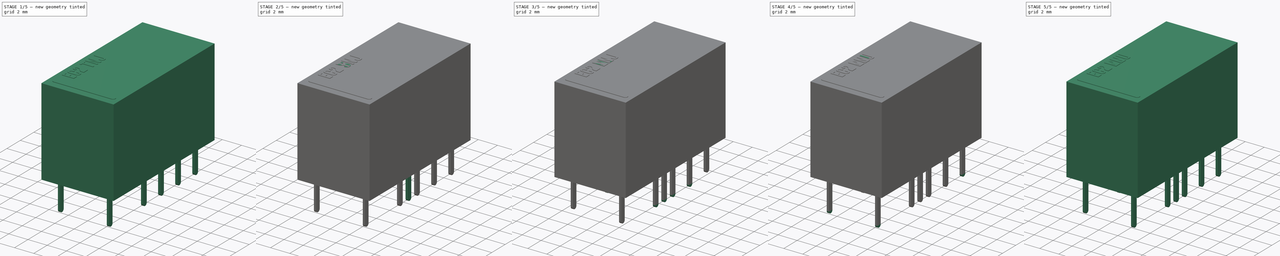
[diagram: build sequence overview — one tinted view per stage of 5, left to right]
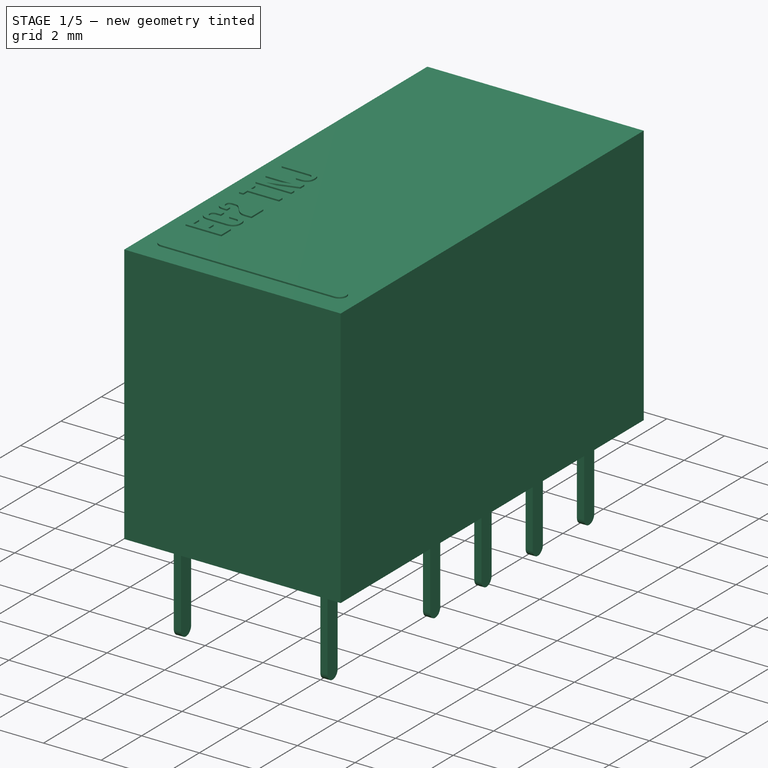
[diagram: stage 1 of 5 — iso view after this stage's code; geometry added in this stage tinted green]
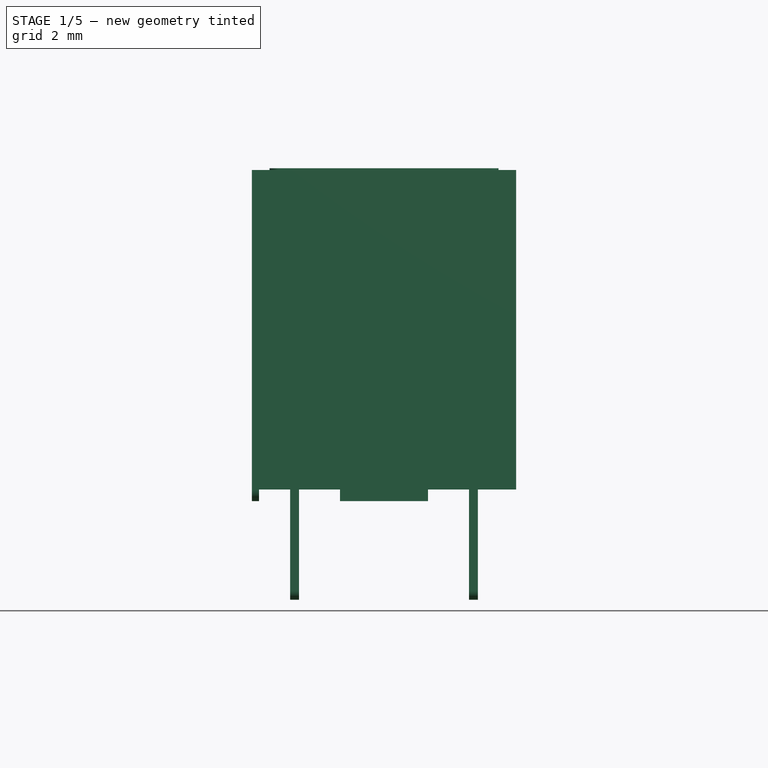
[diagram: stage 1 of 5 — front view after this stage's code; geometry added in this stage tinted green]
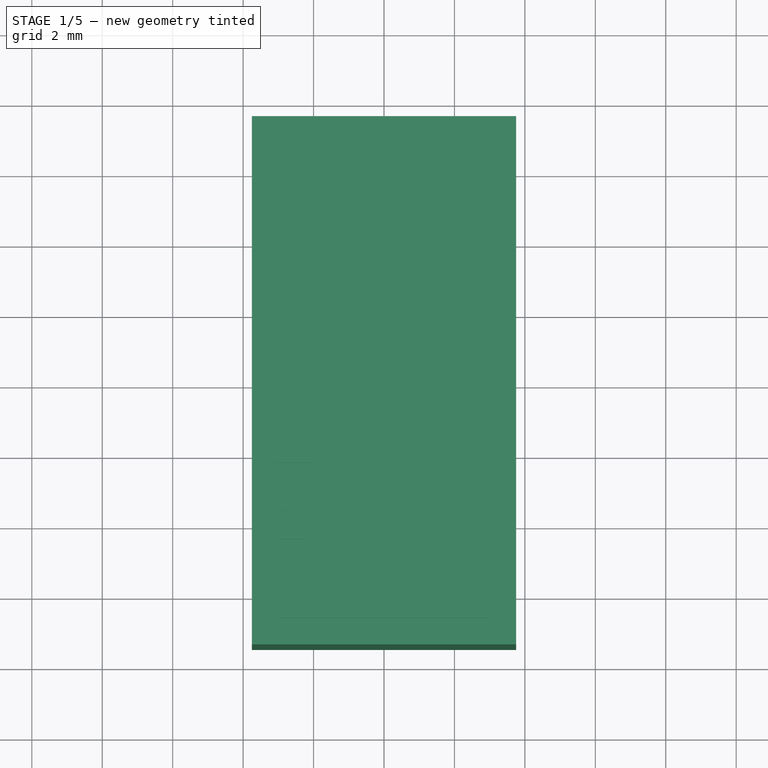
[diagram: stage 1 of 5 — top view after this stage's code; geometry added in this stage tinted green]
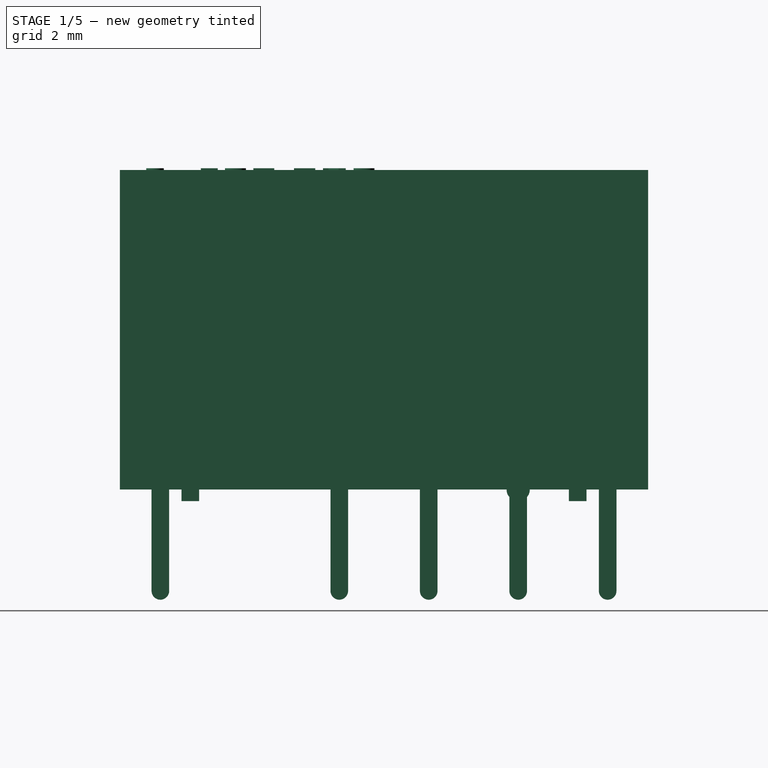
[diagram: stage 1 of 5 — right view after this stage's code; geometry added in this stage tinted green]
FCSTD DOCUMENT  (FreeCAD 0.19R16945 (Git))
Label: Kemet EC2 Series
License: All rights reserved
LicenseURL: http://en.wikipedia.org/wiki/All_rights_reserved
objects: Sketcher::SketchObject×44, PartDesign::Pad×38, PartDesign::Body×22, PartDesign::FeatureBase×16, PartDesign::Pocket×12, Part::FeaturePython×12, PartDesign::Mirrored×6, Part::Part2DObjectPython×6, App::Part×6, Part::MultiFuse×2
note: 208 computed .brp shape members not serialized (recipe doc carries the construction recipe); baked Part::Feature solids carry a one-line shape summary decoded from their .brp

FEATURE [PartDesign::Body] Body019
  BaseFeature = -> Pad036
  Group = -> [Clone015]
  Origin = -> Origin025
  Placement = pos=(0,-6.35,0) rot=(0,0,1;0rad)
  Tip = -> Clone015
FEATURE [PartDesign::Body] Body020
  Group = -> [Clone013]
  Origin = -> Origin021
  Placement = pos=(-5.08,-6.35,0) rot=(0,0,1;0rad)
  Tip = -> Clone013
FEATURE [Sketcher::SketchObject] Sketch042
  MapMode = 5
  Support = -> [XY_Plane025]
  sketch-geometry (4):
    g0: LineSegment StartX=3.75 StartY=-7.5 StartZ=0 EndX=-3.75 EndY=-7.5 EndZ=0
    g1: LineSegment StartX=-3.75 StartY=-7.5 StartZ=0 EndX=-3.75 EndY=7.5 EndZ=0
    g2: LineSegment StartX=-3.75 StartY=7.5 StartZ=0 EndX=3.75 EndY=7.5 EndZ=0
    g3: LineSegment StartX=3.75 StartY=7.5 StartZ=0 EndX=3.75 EndY=-7.5 EndZ=0
  constraints (10):
    c: Coincident(g0,g1)
    c: Coincident(g1,g2)
    c: Coincident(g2,g3)
    c: Coincident(g3,g0)
    c: Horizontal(g0)
    c: Vertical(g1)
    c: Symmetric(g1,g2,g-2)
    c: Symmetric(g2,g0,g-1)
    c: DistanceX(g2,g2) = 7.5
    c: DistanceY(g3,g3) = 15
FEATURE [PartDesign::Pad] Pad031  label="MainPad004"
  Length = 9.4
  Length2 = 100
  Profile = -> Sketch042
  Type = 0
FEATURE [Sketcher::SketchObject] Sketch043
  MapMode = 5
  Placement = pos=(0,0,9.4) rot=(0,0,1;0rad)
  sketch-geometry (4):
    g0: ArcOfCircle CenterX=-3 CenterY=-6.5 CenterZ=0 NormalX=0 NormalY=0 NormalZ=1 AngleXU=0 Radius=0.25 StartAngle=1.5708 EndAngle=4.71239
    g1: ArcOfCircle CenterX=3 CenterY=-6.5 CenterZ=0 NormalX=0 NormalY=0 NormalZ=1 AngleXU=0 Radius=0.25 StartAngle=4.71239 EndAngle=7.85398
    g2: LineSegment StartX=-3 StartY=-6.75 StartZ=0 EndX=3 EndY=-6.75 EndZ=0
    g3: LineSegment StartX=-3 StartY=-6.25 StartZ=0 EndX=3 EndY=-6.25 EndZ=0
  constraints (7):
    c: Tangent(g0,g3) = 1.5708
    c: Tangent(g0,g2) = -1.5708
    c: Tangent(g2,g1) = -1.5708
    c: Tangent(g3,g1) = 1.5708
    c: Horizontal(g2)
    c: Symmetric(g1,g0,g-2)
    c: DistanceY(g1,g1) = 0.5
FEATURE [Sketcher::SketchObject] Sketch044
  ExternalGeometry = -> [Pad031]
  MapMode = 5
  Placement = pos=(-3.75,0,0) rot=(0.57735,-0.57735,-0.57735;2.0944rad)
  Support = -> [Pad031]
  sketch-geometry (4):
    g0: LineSegment StartX=-7.5 StartY=0 StartZ=0 EndX=7.5 EndY=0 EndZ=0
    g1: LineSegment StartX=7.5 StartY=0 StartZ=0 EndX=7.5 EndY=0.33 EndZ=0
    g2: LineSegment StartX=7.5 StartY=0.33 StartZ=0 EndX=-7.5 EndY=0.33 EndZ=0
    g3: LineSegment StartX=-7.5 StartY=0.33 StartZ=0 EndX=-7.5 EndY=0 EndZ=0
  constraints (11):
    c: Coincident(g0,g1)
    c: Coincident(g1,g2)
    c: Coincident(g2,g3)
    c: Coincident(g3,g0)
    c: Horizontal(g0)
    c: Horizontal(g2)
    c: Vertical(g1)
    c: Vertical(g3)
    c: Coincident(g0,g-3)
    c: PointOnObject(g1,g-4)
    c: DistanceY(g1,g1) = 0.33
FEATURE [PartDesign::Pocket] Pocket012  label="BottomPocket004"
  BaseFeature = -> Pad031
  Length = 5
  Length2 = 100
  Profile = -> Sketch044
  Type = 1
FEATURE [Sketcher::SketchObject] Sketch038
  MapMode = 5
  Placement = pos=(0,0,0.33) rot=(1,0,0;3.14159rad)
  Support = -> [Pocket012]
  sketch-geometry (4):
    g0: LineSegment StartX=-1.25 StartY=5.25 StartZ=0 EndX=1.25 EndY=5.25 EndZ=0
    g1: LineSegment StartX=1.25 StartY=5.25 StartZ=0 EndX=1.25 EndY=5.75 EndZ=0
    g2: LineSegment StartX=1.25 StartY=5.75 StartZ=0 EndX=-1.25 EndY=5.75 EndZ=0
    g3: LineSegment StartX=-1.25 StartY=5.75 StartZ=0 EndX=-1.25 EndY=5.25 EndZ=0
  constraints (11):
    c: Coincident(g0,g1)
    c: Coincident(g1,g2)
    c: Coincident(g2,g3)
    c: Coincident(g3,g0)
    c: Horizontal(g0)
    c: Vertical(g1)
    c: Vertical(g3)
    c: Symmetric(g2,g1,g-2)
    c: DistanceX(g2,g2) = 2.5
    c: DistanceY(g1,g1) = 0.5
    c: DistanceY(g-1,g0) = 5.25
FEATURE [PartDesign::Pad] Pad033
  BaseFeature = -> Pocket012
  Length = 0.33
  Length2 = 100
  Profile = -> Sketch038
  Type = 0
FEATURE [PartDesign::Mirrored] Mirrored004
  BaseFeature = -> Pad033
  MirrorPlane = -> XZ_Plane023
  Originals = -> [Pad033]
FEATURE [PartDesign::Body] Body018  label="EC2-SNJ_Body"
  Group = -> [Sketch042,Pad031,Sketch044,Pocket012,Sketch038,Pad033,Mirrored004,Sketch040,Pocket011,Sketch041,Pad035,ShapeString004,Sketch043,Pad034,Pad032]
  Origin = -> Origin023
  Tip = -> Pad032
FEATURE [App::Part] Part004  label="EC2-SNJ"
  Group = -> [Body018,Sketch039,Pad036,Body019,Body020,Body017,Body016,Array011,Array012]
  Origin = -> Origin024
FEATURE [Sketcher::SketchObject] Sketch046
  AttachmentOffset = pos=(0,0,2.54) rot=(0,0,1;0rad)
  MapMode = 5
  Placement = pos=(2.54,-1e-15,1e-15) rot=(0.57735,0.57735,0.57735;2.0944rad)
  sketch-geometry (6):
    g0: ArcOfCircle CenterX=0 CenterY=-2.55 CenterZ=0 NormalX=0 NormalY=0 NormalZ=1 AngleXU=0 Radius=0.25 StartAngle=3.14159 EndAngle=6.28319
    g1: LineSegment StartX=-0.25 StartY=-2.55 StartZ=0 EndX=-0.25 EndY=0.33 EndZ=0
    g2: LineSegment StartX=-0.25 StartY=0.33 StartZ=0 EndX=0.25 EndY=0.33 EndZ=0
    g3: LineSegment StartX=0.25 StartY=0.33 StartZ=0 EndX=0.25 EndY=-2.55 EndZ=0
    g4: GeomPoint X=-0.25 Y=0 Z=0
    g5: GeomPoint X=0 Y=-2.8 Z=0
  constraints (16):
    c: Tangent(g0,g1) = 1.5708
    c: Coincident(g1,g2)
    c: Coincident(g2,g3)
    c: Coincident(g3,g0)
    c: Vertical(g3)
    c: Equal(g3,g1)
    c: Vertical(g1)
    c: Horizontal(g2)
    c: PointOnObject(g4,g1)
    c: PointOnObject(g4,g-1)
    c: DistanceY(g4,g1) = 0.33
    c: DistanceX(g0,g0) = 0.5
    c: PointOnObject(g5,g0)
    c: Vertical(g5,g0)
    c: DistanceY(g5,g-1) = 2.8
    c: PointOnObject(g0,g-2)
FEATURE [Sketcher::SketchObject] Sketch048
  MapMode = 5
  Support = -> [XY_Plane027]
  sketch-geometry (4):
    g0: LineSegment StartX=3.75 StartY=-7.5 StartZ=0 EndX=-3.75 EndY=-7.5 EndZ=0
    g1: LineSegment StartX=-3.75 StartY=-7.5 StartZ=0 EndX=-3.75 EndY=7.5 EndZ=0
    g2: LineSegment StartX=-3.75 StartY=7.5 StartZ=0 EndX=3.75 EndY=7.5 EndZ=0
    g3: LineSegment StartX=3.75 StartY=7.5 StartZ=0 EndX=3.75 EndY=-7.5 EndZ=0
  constraints (10):
    c: Coincident(g0,g1)
    c: Coincident(g1,g2)
    c: Coincident(g2,g3)
    c: Coincident(g3,g0)
    c: Horizontal(g0)
    c: Vertical(g1)
    c: Symmetric(g1,g2,g-2)
    c: Symmetric(g2,g0,g-1)
    c: DistanceX(g2,g2) = 7.5
    c: DistanceY(g3,g3) = 15
FEATURE [PartDesign::Pad] Pad037
  Length = 0.25
  Length2 = 100
  Midplane = true
  Placement = pos=(2.54,-1e-15,1e-15) rot=(0.57735,0.57735,0.57735;2.0944rad)
  Profile = -> Sketch046
  Reversed = true
  Type = 0
FEATURE [PartDesign::Pad] Pad039  label="MainPad005"
  Length = 9.4
  Length2 = 100
  Profile = -> Sketch048
  Type = 0
FEATURE [Sketcher::SketchObject] Sketch051
  ExternalGeometry = -> [Pad039]
  MapMode = 5
  Placement = pos=(-3.75,0,0) rot=(0.57735,-0.57735,-0.57735;2.0944rad)
  Support = -> [Pad039]
  sketch-geometry (4):
    g0: LineSegment StartX=-7.5 StartY=0 StartZ=0 EndX=7.5 EndY=0 EndZ=0
    g1: LineSegment StartX=7.5 StartY=0 StartZ=0 EndX=7.5 EndY=0.33 EndZ=0
    g2: LineSegment StartX=7.5 StartY=0.33 StartZ=0 EndX=-7.5 EndY=0.33 EndZ=0
    g3: LineSegment StartX=-7.5 StartY=0.33 StartZ=0 EndX=-7.5 EndY=0 EndZ=0
  constraints (11):
    c: Coincident(g0,g1)
    c: Coincident(g1,g2)
    c: Coincident(g2,g3)
    c: Coincident(g3,g0)
    c: Horizontal(g0)
    c: Horizontal(g2)
    c: Vertical(g1)
    c: Vertical(g3)
    c: Coincident(g0,g-3)
    c: PointOnObject(g1,g-4)
    c: DistanceY(g1,g1) = 0.33
FEATURE [PartDesign::Pocket] Pocket013  label="BottomPocket005"
  BaseFeature = -> Pad039
  Length = 5
  Length2 = 100
  Profile = -> Sketch051
  Type = 1
FEATURE [Sketcher::SketchObject] Sketch045
  MapMode = 5
  Placement = pos=(0,0,0.33) rot=(1,0,0;3.14159rad)
  Support = -> [Pocket013]
  sketch-geometry (4):
    g0: LineSegment StartX=-1.25 StartY=5.25 StartZ=0 EndX=1.25 EndY=5.25 EndZ=0
    g1: LineSegment StartX=1.25 StartY=5.25 StartZ=0 EndX=1.25 EndY=5.75 EndZ=0
    g2: LineSegment StartX=1.25 StartY=5.75 StartZ=0 EndX=-1.25 EndY=5.75 EndZ=0
    g3: LineSegment StartX=-1.25 StartY=5.75 StartZ=0 EndX=-1.25 EndY=5.25 EndZ=0
  constraints (11):
    c: Coincident(g0,g1)
    c: Coincident(g1,g2)
    c: Coincident(g2,g3)
    c: Coincident(g3,g0)
    c: Horizontal(g0)
    c: Vertical(g1)
    c: Vertical(g3)
    c: Symmetric(g2,g1,g-2)
    c: DistanceX(g2,g2) = 2.5
    c: DistanceY(g1,g1) = 0.5
    c: DistanceY(g-1,g0) = 5.25
FEATURE [Sketcher::SketchObject] Sketch050
  MapMode = 5
  Placement = pos=(-3.75,0,0) rot=(0.57735,-0.57735,-0.57735;2.0944rad)
  Support = -> [Pocket013]
  sketch-geometry (3):
    g0: LineSegment StartX=-4.14 StartY=0.33 StartZ=0 EndX=-3.48 EndY=0.33 EndZ=0
    g1: ArcOfCircle CenterX=-3.81 CenterY=0.33 CenterZ=0 NormalX=0 NormalY=0 NormalZ=1 AngleXU=0 Radius=0.33 StartAngle=3.14159 EndAngle=6.28319
    g2: GeomPoint X=-3.81 Y=0 Z=0
  constraints (9):
    c: Horizontal(g0)
    c: DistanceX(g0,g0) = 0.66
    c: Coincident(g1,g0)
    c: Coincident(g1,g0)
    c: PointOnObject(g2,g1)
    c: PointOnObject(g2,g-1)
    c: DistanceY(g2,g0) = 0.33
    c: Tangent(g1,g-1)
    c: DistanceX(g2,g-1) = 3.81
FEATURE [PartDesign::Pad] Pad041
  BaseFeature = -> Pocket013
  Length = 0.33
  Length2 = 100
  Profile = -> Sketch045
  Type = 0
FEATURE [PartDesign::Mirrored] Mirrored005
  BaseFeature = -> Pad041
  MirrorPlane = -> XZ_Plane026
  Originals = -> [Pad041]
FEATURE [Sketcher::SketchObject] Sketch049
  ExternalGeometry = -> [Mirrored005]
  MapMode = 5
  Placement = pos=(0,0,0.33) rot=(1,0,0;3.14159rad)
  Support = -> [Mirrored005]
  sketch-geometry (12):
    g0: LineSegment StartX=1.25 StartY=5.75 StartZ=0 EndX=-1.25 EndY=5.75 EndZ=0
    g1: LineSegment StartX=-1.25 StartY=5.75 StartZ=0 EndX=-1.25 EndY=5.25 EndZ=0
    g2: LineSegment StartX=-1.25 StartY=5.25 StartZ=0 EndX=1.25 EndY=5.25 EndZ=0
    g3: LineSegment StartX=1.25 StartY=5.25 StartZ=0 EndX=1.25 EndY=5.75 EndZ=0
    g4: LineSegment StartX=-1.25 StartY=-5.25 StartZ=0 EndX=1.25 EndY=-5.25 EndZ=0
    g5: LineSegment StartX=1.25 StartY=-5.25 StartZ=0 EndX=1.25 EndY=-5.75 EndZ=0
    g6: LineSegment StartX=1.25 StartY=-5.75 StartZ=0 EndX=-1.25 EndY=-5.75 EndZ=0
    g7: LineSegment StartX=-1.25 StartY=-5.75 StartZ=0 EndX=-1.25 EndY=-5.25 EndZ=0
    g8: LineSegment StartX=-3.55 StartY=7.3 StartZ=0 EndX=3.55 EndY=7.3 EndZ=0
    g9: LineSegment StartX=3.55 StartY=7.3 StartZ=0 EndX=3.55 EndY=-7.3 EndZ=0
    g10: LineSegment StartX=3.55 StartY=-7.3 StartZ=0 EndX=-3.55 EndY=-7.3 EndZ=0
    g11: LineSegment StartX=-3.55 StartY=-7.3 StartZ=0 EndX=-3.55 EndY=7.3 EndZ=0
  constraints (30):
    c: Coincident(g0,g1)
    c: Coincident(g1,g2)
    c: Coincident(g2,g3)
    c: Coincident(g3,g0)
    c: Horizontal(g0)
    c: Horizontal(g2)
    c: Vertical(g1)
    c: Vertical(g3)
    c: Coincident(g0,g-5)
    c: Coincident(g1,g-6)
    c: Coincident(g4,g5)
    c: Coincident(g5,g6)
    c: Coincident(g6,g7)
    c: Coincident(g7,g4)
    c: Horizontal(g4)
    c: Horizontal(g6)
    c: Vertical(g5)
    c: Vertical(g7)
    c: Coincident(g4,g-7)
    c: Coincident(g5,g-8)
    c: Coincident(g8,g9)
    c: Coincident(g9,g10)
    c: Coincident(g10,g11)
    c: Coincident(g11,g8)
    c: Horizontal(g8)
    c: Vertical(g9)
    c: DistanceX(g8,g-4) = 0.2
    c: DistanceY(g8,g-4) = 0.2
    c: Symmetric(g9,g10,g-2)
    c: Symmetric(g8,g10,g-1)
FEATURE [PartDesign::Pocket] Pocket014
  BaseFeature = -> Mirrored005
  Length = 0.1
  Length2 = 100
  Profile = -> Sketch049
  Type = 0
FEATURE [Part::FeaturePython] Array013  # Draft array (typed FeaturePython)
  Angle = 360
  ArrayType = 0
  Axis = (0,0,1)
  Base = -> Pad037
  Center = (0,0,0)
  Fuse = false
  IntervalAxis = (0,0,0)
  IntervalX = (-5.08,0,0)
  IntervalY = (0,2.54,0)
  IntervalZ = (0,0,1)
  NumberPolar = 1
  NumberX = 2
  NumberY = 4
  NumberZ = 1
  Placement = pos=(0,-1.27,0) rot=(0,0,1;0rad)
FEATURE [Part::FeaturePython] Array014  # Draft array (typed FeaturePython)
  Angle = 360
  ArrayType = 0
  Axis = (0,0,1)
  Base = -> Pad037
  Center = (0,0,0)
  Fuse = false
  IntervalAxis = (0,0,0)
  IntervalX = (-5.08,0,0)
  IntervalY = (0,-6.35,0)
  IntervalZ = (0,0,1)
  NumberPolar = 1
  NumberX = 2
  NumberY = 1
  NumberZ = 1
  Placement = pos=(0,-6.35,0) rot=(0,0,1;0rad)
FEATURE [Sketcher::SketchObject] Sketch052
  MapMode = 5
  Placement = pos=(0,0,0.43) rot=(1,0,0;3.14159rad)
  Support = -> [Pocket014]
  sketch-geometry (8):
    g0: LineSegment StartX=-1.62309 StartY=4.64048 StartZ=0 EndX=1.62309 EndY=4.64048 EndZ=0
    g1: LineSegment StartX=2.49814 StartY=3.76544 StartZ=0 EndX=2.49814 EndY=-3.76544 EndZ=0
    g2: LineSegment StartX=1.62309 StartY=-4.64048 StartZ=0 EndX=-1.62309 EndY=-4.64048 EndZ=0
    g3: LineSegment StartX=-2.49814 StartY=-3.76544 StartZ=0 EndX=-2.49814 EndY=3.76544 EndZ=0
    g4: ArcOfCircle CenterX=-1.62309 CenterY=3.76544 CenterZ=0 NormalX=0 NormalY=0 NormalZ=1 AngleXU=0 Radius=0.875044 StartAngle=1.5708 EndAngle=3.14159
    g5: ArcOfCircle CenterX=1.62309 CenterY=3.76544 CenterZ=0 NormalX=0 NormalY=0 NormalZ=1 AngleXU=0 Radius=0.875044 StartAngle=0 EndAngle=1.5708
    g6: ArcOfCircle CenterX=1.62309 CenterY=-3.76544 CenterZ=0 NormalX=0 NormalY=0 NormalZ=1 AngleXU=0 Radius=0.875044 StartAngle=4.71239 EndAngle=6.28319
    g7: ArcOfCircle CenterX=-1.62309 CenterY=-3.76544 CenterZ=0 NormalX=0 NormalY=0 NormalZ=1 AngleXU=0 Radius=0.875044 StartAngle=3.14159 EndAngle=4.71239
  constraints (15):
    c: Horizontal(g0)
    c: Horizontal(g2)
    c: Vertical(g1)
    c: Vertical(g3)
    c: Tangent(g0,g4) = 1.5708
    c: Tangent(g3,g4) = 1.5708
    c: Tangent(g0,g5) = 1.5708
    c: Tangent(g1,g5) = 1.5708
    c: Tangent(g1,g6) = 1.5708
    c: Tangent(g2,g6) = 1.5708
    c: Tangent(g2,g7) = 1.5708
    c: Tangent(g3,g7) = 1.5708
    c: Equal(g5,g6)
    c: Symmetric(g3,g1,g-2)
    c: Symmetric(g0,g2,g-1)
FEATURE [PartDesign::Pad] Pad043
  BaseFeature = -> Pocket014
  Length = 0.05
  Length2 = 100
  Profile = -> Sketch052
  Type = 0
FEATURE [PartDesign::Pad] Pad042  label="StandoffPad003"
  BaseFeature = -> Pad043
  Length = 0.2
  Length2 = 100
  Profile = -> Sketch050
  Refine = true
  Reversed = true
  Type = 0
FEATURE [Sketcher::SketchObject] Sketch047
  ExternalGeometry = -> [Pad042]
  MapMode = 5
  Placement = pos=(0,0,9.4) rot=(0,0,1;0rad)
  Support = -> [Pad042]
  sketch-geometry (4):
    g0: ArcOfCircle CenterX=-3 CenterY=-6.5 CenterZ=0 NormalX=0 NormalY=0 NormalZ=1 AngleXU=0 Radius=0.25 StartAngle=1.5708 EndAngle=4.71239
    g1: ArcOfCircle CenterX=3 CenterY=-6.5 CenterZ=0 NormalX=0 NormalY=0 NormalZ=1 AngleXU=0 Radius=0.25 StartAngle=4.71239 EndAngle=7.85398
    g2: LineSegment StartX=-3 StartY=-6.75 StartZ=0 EndX=3 EndY=-6.75 EndZ=0
    g3: LineSegment StartX=-3 StartY=-6.25 StartZ=0 EndX=3 EndY=-6.25 EndZ=0
  constraints (9):
    c: Tangent(g0,g3) = 1.5708
    c: Tangent(g0,g2) = -1.5708
    c: Tangent(g2,g1) = -1.5708
    c: Tangent(g3,g1) = 1.5708
    c: Horizontal(g2)
    c: Symmetric(g1,g0,g-2)
    c: DistanceY(g1,g1) = 0.5
    c: DistanceX(g-3,g0) = 0.75
    c: DistanceY(g-4,g0) = 1
FEATURE [PartDesign::Pad] Pad040  label="CoilMarkingPad005"
  BaseFeature = -> Pad042
  Length = 0.05
  Length2 = 100
  Profile = -> Sketch047
  Type = 0
FEATURE [Part::MultiFuse] Fusion003  label="EC2-TNJ_Pins"
  Shapes = -> [Array014,Array013]
FEATURE [Part::Part2DObjectPython] ShapeString005  # Draft 2D object (typed FeaturePython)
  AttachmentOffset = pos=(-1,-1,0) rot=(0,0,1;-1.5708rad)
  FontFile = <userpath>/Desktop/GitHub/freecad-projects/00-fonts/coolvetica condensed rg.ttf
  MapMode = 6
  Placement = pos=(-2,-5.25,9.4) rot=(0,0,-1;4.71239rad)
  Size = 0.75
  String = EC2 TNJ
  Support = -> [Pad040]
  Tracking = 0.125
FEATURE [PartDesign::Pad] Pad038  label="ShapeStringPad005"
  BaseFeature = -> Pad040
  Length = 0.05
  Length2 = 100
  Profile = -> ShapeString005
  Type = 0
FEATURE [PartDesign::Body] Body021  label="EC2-TNJ_Body"
  Group = -> [Sketch048,Pad039,Sketch051,Pocket013,Sketch050,Sketch045,Pad041,Mirrored005,Sketch049,Pocket014,Sketch052,Pad043,Pad042,ShapeString005,Sketch047,Pad040,Pad038]
  Origin = -> Origin027
  Tip = -> Pad038
FEATURE [App::Part] Part005  label="EC2-TNJ"
  Group = -> [Body021,Sketch046,Pad037,Array014,Array013,Fusion003]
  Origin = -> Origin026
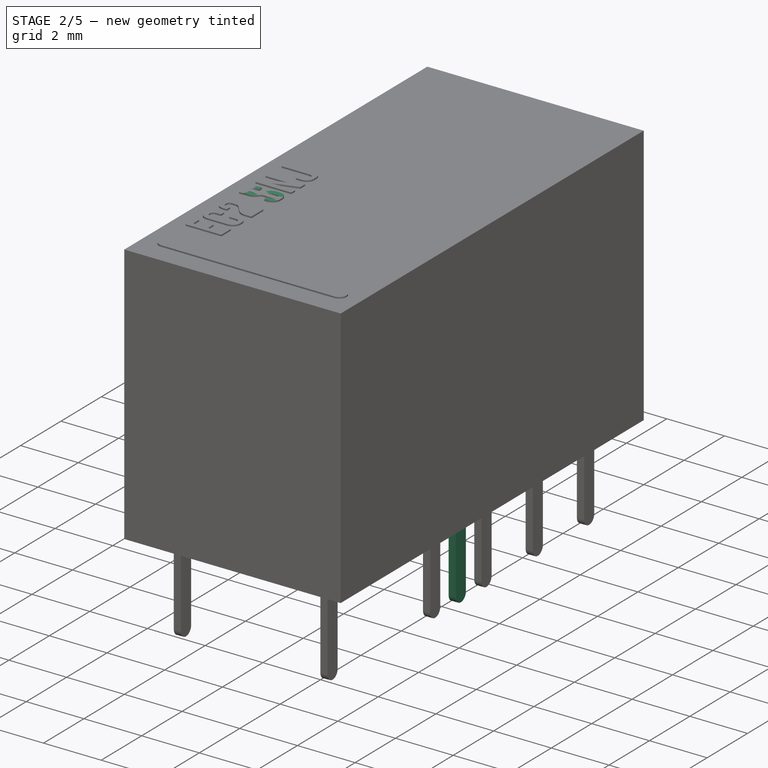
[diagram: stage 2 of 5 — iso view after this stage's code; geometry added in this stage tinted green]
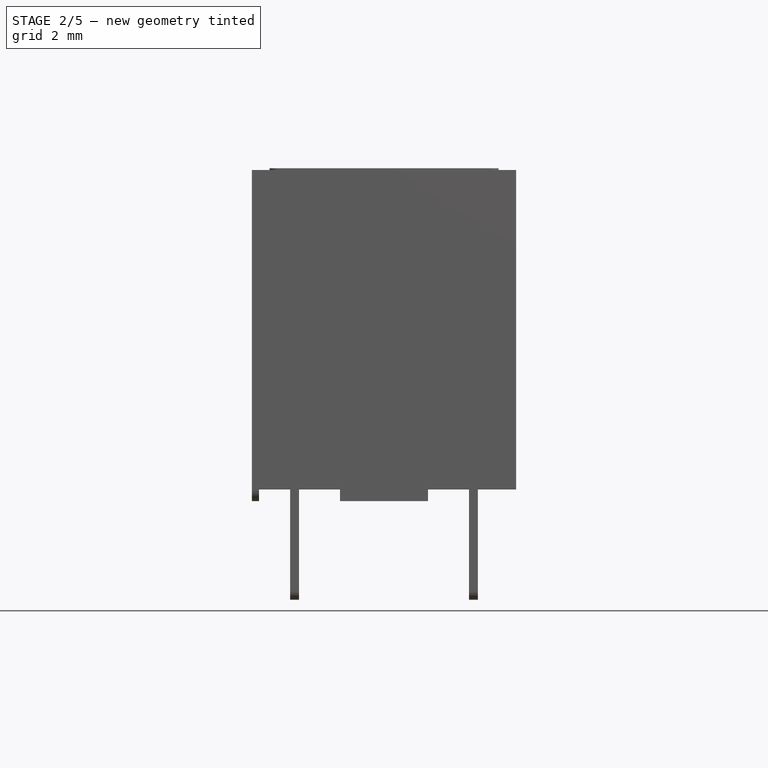
[diagram: stage 2 of 5 — front view after this stage's code; geometry added in this stage tinted green]
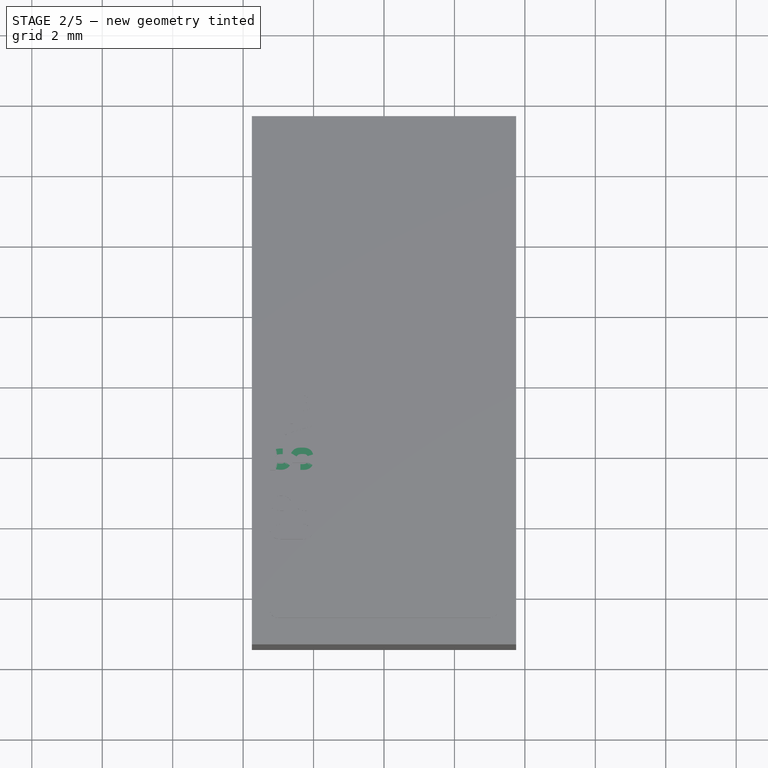
[diagram: stage 2 of 5 — top view after this stage's code; geometry added in this stage tinted green]
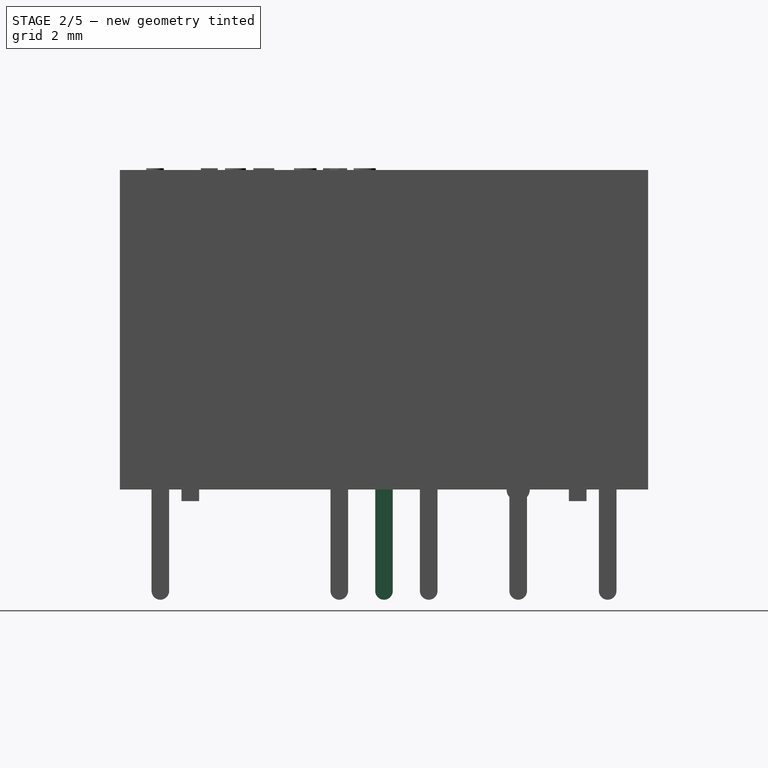
[diagram: stage 2 of 5 — right view after this stage's code; geometry added in this stage tinted green]
FEATURE [App::Part] Part001  label="EC2-SNU"
  Group = -> [Body001,Sketch017,Pad012,Body007,Body008,Body009,Body010,Array007,Array008]
  Origin = -> Origin003
FEATURE [Sketcher::SketchObject] Sketch031
  MapMode = 5
  Placement = pos=(0,0,9.4) rot=(0,0,1;0rad)
  sketch-geometry (4):
    g0: ArcOfCircle CenterX=-3 CenterY=-6.5 CenterZ=0 NormalX=0 NormalY=0 NormalZ=1 AngleXU=0 Radius=0.25 StartAngle=1.5708 EndAngle=4.71239
    g1: ArcOfCircle CenterX=3 CenterY=-6.5 CenterZ=0 NormalX=0 NormalY=0 NormalZ=1 AngleXU=0 Radius=0.25 StartAngle=4.71239 EndAngle=7.85398
    g2: LineSegment StartX=-3 StartY=-6.75 StartZ=0 EndX=3 EndY=-6.75 EndZ=0
    g3: LineSegment StartX=-3 StartY=-6.25 StartZ=0 EndX=3 EndY=-6.25 EndZ=0
  constraints (7):
    c: Tangent(g0,g3) = 1.5708
    c: Tangent(g0,g2) = -1.5708
    c: Tangent(g2,g1) = -1.5708
    c: Tangent(g3,g1) = 1.5708
    c: Horizontal(g2)
    c: Symmetric(g1,g0,g-2)
    c: DistanceY(g1,g1) = 0.5
FEATURE [Sketcher::SketchObject] Sketch033
  AttachmentOffset = pos=(0,0,2.54) rot=(0,0,1;0rad)
  MapMode = 5
  Placement = pos=(2.54,-1e-15,1e-15) rot=(0.57735,0.57735,0.57735;2.0944rad)
  sketch-geometry (6):
    g0: ArcOfCircle CenterX=0 CenterY=-2.55 CenterZ=0 NormalX=0 NormalY=0 NormalZ=1 AngleXU=0 Radius=0.25 StartAngle=3.14159 EndAngle=6.28319
    g1: LineSegment StartX=-0.25 StartY=-2.55 StartZ=0 EndX=-0.25 EndY=0.33 EndZ=0
    g2: LineSegment StartX=-0.25 StartY=0.33 StartZ=0 EndX=0.25 EndY=0.33 EndZ=0
    g3: LineSegment StartX=0.25 StartY=0.33 StartZ=0 EndX=0.25 EndY=-2.55 EndZ=0
    g4: GeomPoint X=-0.25 Y=0 Z=0
    g5: GeomPoint X=0 Y=-2.8 Z=0
  constraints (16):
    c: Tangent(g0,g1) = 1.5708
    c: Coincident(g1,g2)
    c: Coincident(g2,g3)
    c: Coincident(g3,g0)
    c: Vertical(g3)
    c: Equal(g3,g1)
    c: Vertical(g1)
    c: Horizontal(g2)
    c: PointOnObject(g4,g1)
    c: PointOnObject(g4,g-1)
    c: DistanceY(g4,g1) = 0.33
    c: DistanceX(g0,g0) = 0.5
    c: PointOnObject(g5,g0)
    c: Vertical(g5,g0)
    c: DistanceY(g5,g-1) = 2.8
    c: PointOnObject(g0,g-2)
FEATURE [PartDesign::Pad] Pad026
  Length = 0.25
  Length2 = 100
  Midplane = true
  Placement = pos=(2.54,-1e-15,1e-15) rot=(0.57735,0.57735,0.57735;2.0944rad)
  Profile = -> Sketch033
  Reversed = true
  Type = 0
FEATURE [PartDesign::FeatureBase] Clone008
  BaseFeature = -> Pad026
  Placement = pos=(2.54,-1e-15,1e-15) rot=(0.57735,0.57735,0.57735;2.0944rad)
FEATURE [PartDesign::Body] Body015
  Group = -> [Clone008]
  Origin = -> Origin016
  Placement = pos=(0,-1.27,0) rot=(0,0,1;0rad)
  Tip = -> Clone008
FEATURE [Sketcher::SketchObject] Sketch037
  MapMode = 5
  Support = -> [XY_Plane015]
  sketch-geometry (4):
    g0: LineSegment StartX=3.75 StartY=-7.5 StartZ=0 EndX=-3.75 EndY=-7.5 EndZ=0
    g1: LineSegment StartX=-3.75 StartY=-7.5 StartZ=0 EndX=-3.75 EndY=7.5 EndZ=0
    g2: LineSegment StartX=-3.75 StartY=7.5 StartZ=0 EndX=3.75 EndY=7.5 EndZ=0
    g3: LineSegment StartX=3.75 StartY=7.5 StartZ=0 EndX=3.75 EndY=-7.5 EndZ=0
  constraints (10):
    c: Coincident(g0,g1)
    c: Coincident(g1,g2)
    c: Coincident(g2,g3)
    c: Coincident(g3,g0)
    c: Horizontal(g0)
    c: Vertical(g1)
    c: Symmetric(g1,g2,g-2)
    c: Symmetric(g2,g0,g-1)
    c: DistanceX(g2,g2) = 7.5
    c: DistanceY(g3,g3) = 15
FEATURE [PartDesign::Pad] Pad028  label="MainPad003"
  Length = 9.4
  Length2 = 100
  Profile = -> Sketch037
  Type = 0
FEATURE [Sketcher::SketchObject] Sketch034
  ExternalGeometry = -> [Pad028]
  MapMode = 5
  Placement = pos=(-3.75,0,0) rot=(0.57735,-0.57735,-0.57735;2.0944rad)
  Support = -> [Pad028]
  sketch-geometry (4):
    g0: LineSegment StartX=-7.5 StartY=0 StartZ=0 EndX=7.5 EndY=0 EndZ=0
    g1: LineSegment StartX=7.5 StartY=0 StartZ=0 EndX=7.5 EndY=0.33 EndZ=0
    g2: LineSegment StartX=7.5 StartY=0.33 StartZ=0 EndX=-7.5 EndY=0.33 EndZ=0
    g3: LineSegment StartX=-7.5 StartY=0.33 StartZ=0 EndX=-7.5 EndY=0 EndZ=0
  constraints (11):
    c: Coincident(g0,g1)
    c: Coincident(g1,g2)
    c: Coincident(g2,g3)
    c: Coincident(g3,g0)
    c: Horizontal(g0)
    c: Horizontal(g2)
    c: Vertical(g1)
    c: Vertical(g3)
    c: Coincident(g0,g-3)
    c: PointOnObject(g1,g-4)
    c: DistanceY(g1,g1) = 0.33
FEATURE [PartDesign::Pocket] Pocket009  label="BottomPocket003"
  BaseFeature = -> Pad028
  Length = 5
  Length2 = 100
  Profile = -> Sketch034
  Type = 1
FEATURE [Sketcher::SketchObject] Sketch032
  MapMode = 5
  Placement = pos=(0,0,0.33) rot=(1,0,0;3.14159rad)
  Support = -> [Pocket009]
  sketch-geometry (4):
    g0: LineSegment StartX=-1.25 StartY=5.25 StartZ=0 EndX=1.25 EndY=5.25 EndZ=0
    g1: LineSegment StartX=1.25 StartY=5.25 StartZ=0 EndX=1.25 EndY=5.75 EndZ=0
    g2: LineSegment StartX=1.25 StartY=5.75 StartZ=0 EndX=-1.25 EndY=5.75 EndZ=0
    g3: LineSegment StartX=-1.25 StartY=5.75 StartZ=0 EndX=-1.25 EndY=5.25 EndZ=0
  constraints (11):
    c: Coincident(g0,g1)
    c: Coincident(g1,g2)
    c: Coincident(g2,g3)
    c: Coincident(g3,g0)
    c: Horizontal(g0)
    c: Vertical(g1)
    c: Vertical(g3)
    c: Symmetric(g2,g1,g-2)
    c: DistanceX(g2,g2) = 2.5
    c: DistanceY(g1,g1) = 0.5
    c: DistanceY(g-1,g0) = 5.25
FEATURE [PartDesign::Pad] Pad030
  BaseFeature = -> Pocket009
  Length = 0.33
  Length2 = 100
  Profile = -> Sketch032
  Type = 0
FEATURE [PartDesign::Body] Body014  label="EC2-NJ_Body"
  Group = -> [Sketch037,Pad028,Sketch034,Pocket009,Sketch032,Pad030,Mirrored003,Sketch036,Pocket010,Sketch035,Pad027,ShapeString003,Sketch031,Pad029,Pad025]
  Origin = -> Origin014
  Tip = -> Pad025
FEATURE [Part::FeaturePython] Array010  # Draft array (typed FeaturePython)
  Angle = 360
  ArrayType = 0
  Axis = (0,0,1)
  Base = -> Body015
  Center = (0,0,0)
  Fuse = false
  IntervalAxis = (0,0,0)
  IntervalX = (1,0,0)
  IntervalY = (0,2.54,0)
  IntervalZ = (0,0,1)
  NumberPolar = 1
  NumberX = 1
  NumberY = 3
  NumberZ = 1
FEATURE [App::Part] Part003  label="EC2-NJ"
  Group = -> [Body014,Sketch033,Pad026,Body011,Body012,Body015,Body013,Array010,Array009]
  Origin = -> Origin015
FEATURE [Sketcher::SketchObject] Sketch039
  AttachmentOffset = pos=(0,0,2.54) rot=(0,0,1;0rad)
  MapMode = 5
  Placement = pos=(2.54,-1e-15,1e-15) rot=(0.57735,0.57735,0.57735;2.0944rad)
  sketch-geometry (6):
    g0: ArcOfCircle CenterX=0 CenterY=-2.55 CenterZ=0 NormalX=0 NormalY=0 NormalZ=1 AngleXU=0 Radius=0.25 StartAngle=3.14159 EndAngle=6.28319
    g1: LineSegment StartX=-0.25 StartY=-2.55 StartZ=0 EndX=-0.25 EndY=0.33 EndZ=0
    g2: LineSegment StartX=-0.25 StartY=0.33 StartZ=0 EndX=0.25 EndY=0.33 EndZ=0
    g3: LineSegment StartX=0.25 StartY=0.33 StartZ=0 EndX=0.25 EndY=-2.55 EndZ=0
    g4: GeomPoint X=-0.25 Y=0 Z=0
    g5: GeomPoint X=0 Y=-2.8 Z=0
  constraints (16):
    c: Tangent(g0,g1) = 1.5708
    c: Coincident(g1,g2)
    c: Coincident(g2,g3)
    c: Coincident(g3,g0)
    c: Vertical(g3)
    c: Equal(g3,g1)
    c: Vertical(g1)
    c: Horizontal(g2)
    c: PointOnObject(g4,g1)
    c: PointOnObject(g4,g-1)
    c: DistanceY(g4,g1) = 0.33
    c: DistanceX(g0,g0) = 0.5
    c: PointOnObject(g5,g0)
    c: Vertical(g5,g0)
    c: DistanceY(g5,g-1) = 2.8
    c: PointOnObject(g0,g-2)
FEATURE [PartDesign::Pad] Pad036
  Length = 0.25
  Length2 = 100
  Midplane = true
  Placement = pos=(2.54,-1e-15,1e-15) rot=(0.57735,0.57735,0.57735;2.0944rad)
  Profile = -> Sketch039
  Reversed = true
  Type = 0
FEATURE [PartDesign::FeatureBase] Clone012
  BaseFeature = -> Pad036
  Placement = pos=(2.54,-1e-15,1e-15) rot=(0.57735,0.57735,0.57735;2.0944rad)
FEATURE [PartDesign::Body] Body016
  BaseFeature = -> Pad036
  Group = -> [Clone012]
  Origin = -> Origin020
  Placement = pos=(-5.08,-1.27,0) rot=(0,0,1;0rad)
  Tip = -> Clone012
FEATURE [Part::FeaturePython] Array012  # Draft array (typed FeaturePython)
  Angle = 360
  ArrayType = 0
  Axis = (0,0,1)
  Base = -> Body016
  Center = (0,0,0)
  Fuse = false
  IntervalAxis = (0,0,0)
  IntervalX = (1,0,0)
  IntervalY = (0,2.54,0)
  IntervalZ = (0,0,1)
  NumberPolar = 1
  NumberX = 1
  NumberY = 3
  NumberZ = 1
FEATURE [PartDesign::FeatureBase] Clone013
  BaseFeature = -> Pad036
  Placement = pos=(2.54,-1e-15,1e-15) rot=(0.57735,0.57735,0.57735;2.0944rad)
FEATURE [PartDesign::FeatureBase] Clone014
  BaseFeature = -> Pad036
  Placement = pos=(2.54,-1e-15,1e-15) rot=(0.57735,0.57735,0.57735;2.0944rad)
FEATURE [PartDesign::Body] Body017
  BaseFeature = -> Pad036
  Group = -> [Clone014]
  Origin = -> Origin022
  Placement = pos=(0,-1.27,0) rot=(0,0,1;0rad)
  Tip = -> Clone014
FEATURE [Part::FeaturePython] Array011  # Draft array (typed FeaturePython)
  Angle = 360
  ArrayType = 0
  Axis = (0,0,1)
  Base = -> Body017
  Center = (0,0,0)
  Fuse = false
  IntervalAxis = (0,0,0)
  IntervalX = (1,0,0)
  IntervalY = (0,2.54,0)
  IntervalZ = (0,0,1)
  NumberPolar = 1
  NumberX = 1
  NumberY = 3
  NumberZ = 1
FEATURE [PartDesign::FeatureBase] Clone015
  BaseFeature = -> Pad036
  Placement = pos=(2.54,-1e-15,1e-15) rot=(0.57735,0.57735,0.57735;2.0944rad)
FEATURE [Sketcher::SketchObject] Sketch040
  ExternalGeometry = -> [Mirrored004]
  MapMode = 5
  Placement = pos=(0,0,0.33) rot=(1,0,0;3.14159rad)
  Support = -> [Mirrored004]
  sketch-geometry (12):
    g0: LineSegment StartX=1.25 StartY=5.75 StartZ=0 EndX=-1.25 EndY=5.75 EndZ=0
    g1: LineSegment StartX=-1.25 StartY=5.75 StartZ=0 EndX=-1.25 EndY=5.25 EndZ=0
    g2: LineSegment StartX=-1.25 StartY=5.25 StartZ=0 EndX=1.25 EndY=5.25 EndZ=0
    g3: LineSegment StartX=1.25 StartY=5.25 StartZ=0 EndX=1.25 EndY=5.75 EndZ=0
    g4: LineSegment StartX=-1.25 StartY=-5.25 StartZ=0 EndX=1.25 EndY=-5.25 EndZ=0
    g5: LineSegment StartX=1.25 StartY=-5.25 StartZ=0 EndX=1.25 EndY=-5.75 EndZ=0
    g6: LineSegment StartX=1.25 StartY=-5.75 StartZ=0 EndX=-1.25 EndY=-5.75 EndZ=0
    g7: LineSegment StartX=-1.25 StartY=-5.75 StartZ=0 EndX=-1.25 EndY=-5.25 EndZ=0
    g8: LineSegment StartX=-3.55 StartY=7.3 StartZ=0 EndX=3.55 EndY=7.3 EndZ=0
    g9: LineSegment StartX=3.55 StartY=7.3 StartZ=0 EndX=3.55 EndY=-7.3 EndZ=0
    g10: LineSegment StartX=3.55 StartY=-7.3 StartZ=0 EndX=-3.55 EndY=-7.3 EndZ=0
    g11: LineSegment StartX=-3.55 StartY=-7.3 StartZ=0 EndX=-3.55 EndY=7.3 EndZ=0
  constraints (30):
    c: Coincident(g0,g1)
    c: Coincident(g1,g2)
    c: Coincident(g2,g3)
    c: Coincident(g3,g0)
    c: Horizontal(g0)
    c: Horizontal(g2)
    c: Vertical(g1)
    c: Vertical(g3)
    c: Coincident(g0,g-5)
    c: Coincident(g1,g-6)
    c: Coincident(g4,g5)
    c: Coincident(g5,g6)
    c: Coincident(g6,g7)
    c: Coincident(g7,g4)
    c: Horizontal(g4)
    c: Horizontal(g6)
    c: Vertical(g5)
    c: Vertical(g7)
    c: Coincident(g4,g-7)
    c: Coincident(g5,g-8)
    c: Coincident(g8,g9)
    c: Coincident(g9,g10)
    c: Coincident(g10,g11)
    c: Coincident(g11,g8)
    c: Horizontal(g8)
    c: Vertical(g9)
    c: DistanceX(g8,g-4) = 0.2
    c: DistanceY(g8,g-4) = 0.2
    c: Symmetric(g9,g10,g-2)
    c: Symmetric(g8,g10,g-1)
FEATURE [PartDesign::Pocket] Pocket011
  BaseFeature = -> Mirrored004
  Length = 0.1
  Length2 = 100
  Profile = -> Sketch040
  Type = 0
FEATURE [Sketcher::SketchObject] Sketch041
  MapMode = 5
  Placement = pos=(0,0,0.43) rot=(1,0,0;3.14159rad)
  Support = -> [Pocket011]
  sketch-geometry (8):
    g0: LineSegment StartX=-1.62309 StartY=4.64048 StartZ=0 EndX=1.62309 EndY=4.64048 EndZ=0
    g1: LineSegment StartX=2.49814 StartY=3.76544 StartZ=0 EndX=2.49814 EndY=-3.76544 EndZ=0
    g2: LineSegment StartX=1.62309 StartY=-4.64048 StartZ=0 EndX=-1.62309 EndY=-4.64048 EndZ=0
    g3: LineSegment StartX=-2.49814 StartY=-3.76544 StartZ=0 EndX=-2.49814 EndY=3.76544 EndZ=0
    g4: ArcOfCircle CenterX=-1.62309 CenterY=3.76544 CenterZ=0 NormalX=0 NormalY=0 NormalZ=1 AngleXU=0 Radius=0.875044 StartAngle=1.5708 EndAngle=3.14159
    g5: ArcOfCircle CenterX=1.62309 CenterY=3.76544 CenterZ=0 NormalX=0 NormalY=0 NormalZ=1 AngleXU=0 Radius=0.875044 StartAngle=0 EndAngle=1.5708
    g6: ArcOfCircle CenterX=1.62309 CenterY=-3.76544 CenterZ=0 NormalX=0 NormalY=0 NormalZ=1 AngleXU=0 Radius=0.875044 StartAngle=4.71239 EndAngle=6.28319
    g7: ArcOfCircle CenterX=-1.62309 CenterY=-3.76544 CenterZ=0 NormalX=0 NormalY=0 NormalZ=1 AngleXU=0 Radius=0.875044 StartAngle=3.14159 EndAngle=4.71239
  constraints (15):
    c: Horizontal(g0)
    c: Horizontal(g2)
    c: Vertical(g1)
    c: Vertical(g3)
    c: Tangent(g0,g4) = 1.5708
    c: Tangent(g3,g4) = 1.5708
    c: Tangent(g0,g5) = 1.5708
    c: Tangent(g1,g5) = 1.5708
    c: Tangent(g1,g6) = 1.5708
    c: Tangent(g2,g6) = 1.5708
    c: Tangent(g2,g7) = 1.5708
    c: Tangent(g3,g7) = 1.5708
    c: Equal(g5,g6)
    c: Symmetric(g3,g1,g-2)
    c: Symmetric(g0,g2,g-1)
FEATURE [PartDesign::Pad] Pad035
  BaseFeature = -> Pocket011
  Length = 0.05
  Length2 = 100
  Profile = -> Sketch041
  Type = 0
FEATURE [PartDesign::Pad] Pad034  label="CoilMarkingPad004"
  BaseFeature = -> Pad035
  Length = 0.05
  Length2 = 100
  Profile = -> Sketch043
  Type = 0
FEATURE [Part::Part2DObjectPython] ShapeString004  # Draft 2D object (typed FeaturePython)
  AttachmentOffset = pos=(-1,-1,0) rot=(0,0,1;-1.5708rad)
  FontFile = <userpath>/Desktop/GitHub/freecad-projects/00-fonts/coolvetica condensed rg.ttf
  MapMode = 6
  Placement = pos=(-2,-5.25,9.4) rot=(0,0,-1;4.71239rad)
  Size = 0.75
  String = EC2 SNJ
  Support = -> [Pad034]
  Tracking = 0.125
FEATURE [PartDesign::Pad] Pad032  label="ShapeStringPad004"
  BaseFeature = -> Pad034
  Length = 0.05
  Length2 = 100
  Profile = -> ShapeString004
  Type = 0
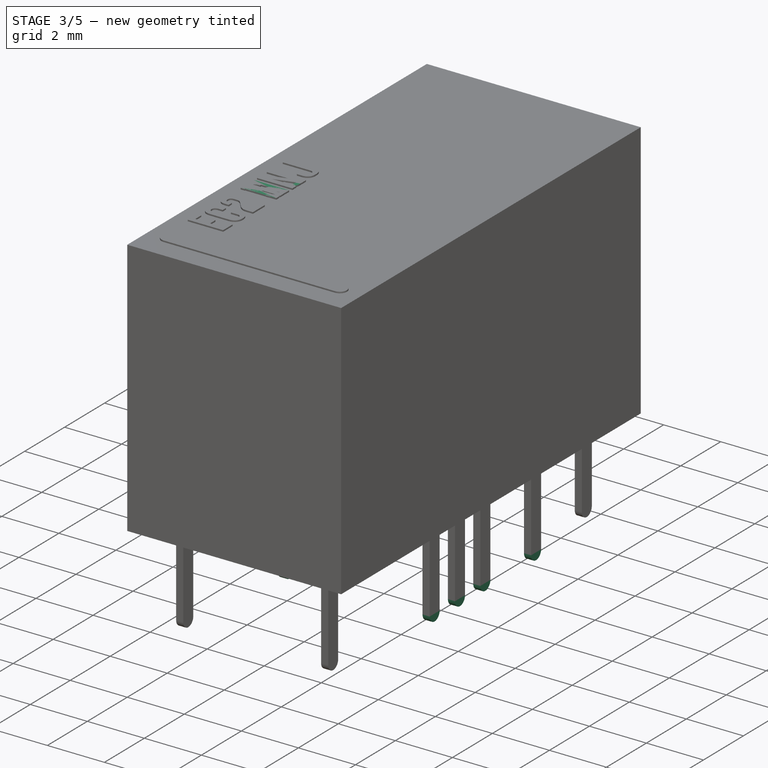
[diagram: stage 3 of 5 — iso view after this stage's code; geometry added in this stage tinted green]
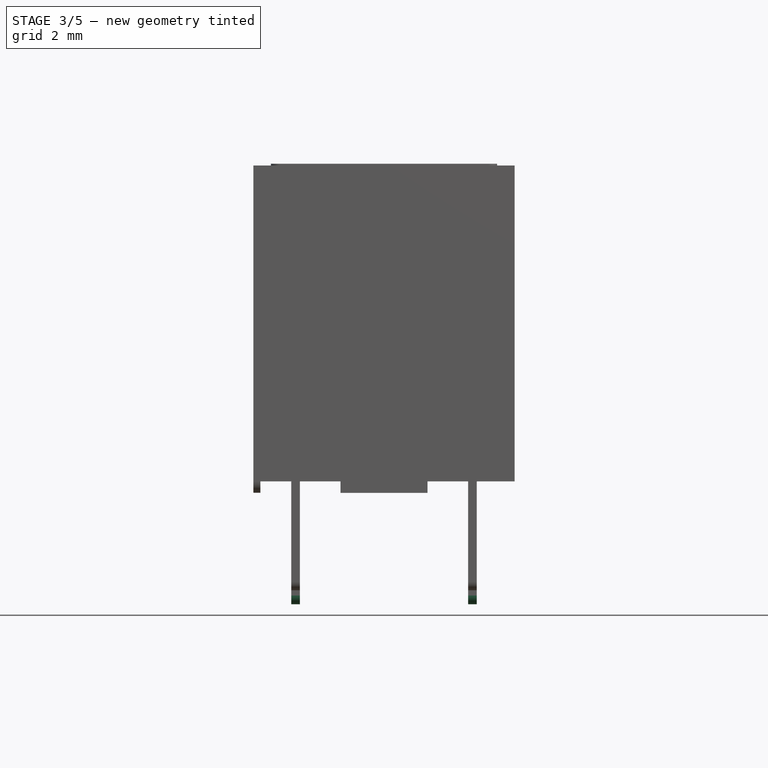
[diagram: stage 3 of 5 — front view after this stage's code; geometry added in this stage tinted green]
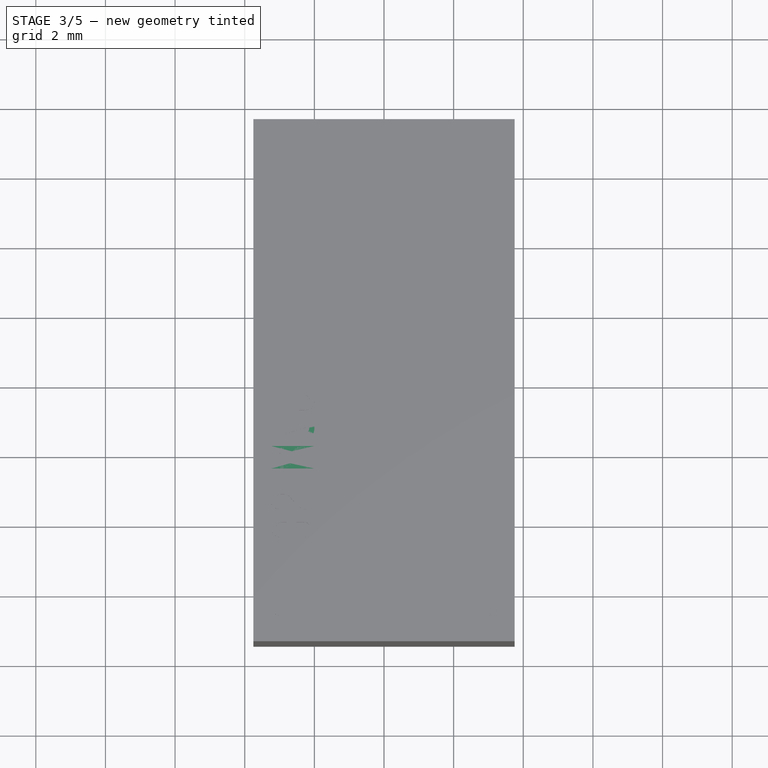
[diagram: stage 3 of 5 — top view after this stage's code; geometry added in this stage tinted green]
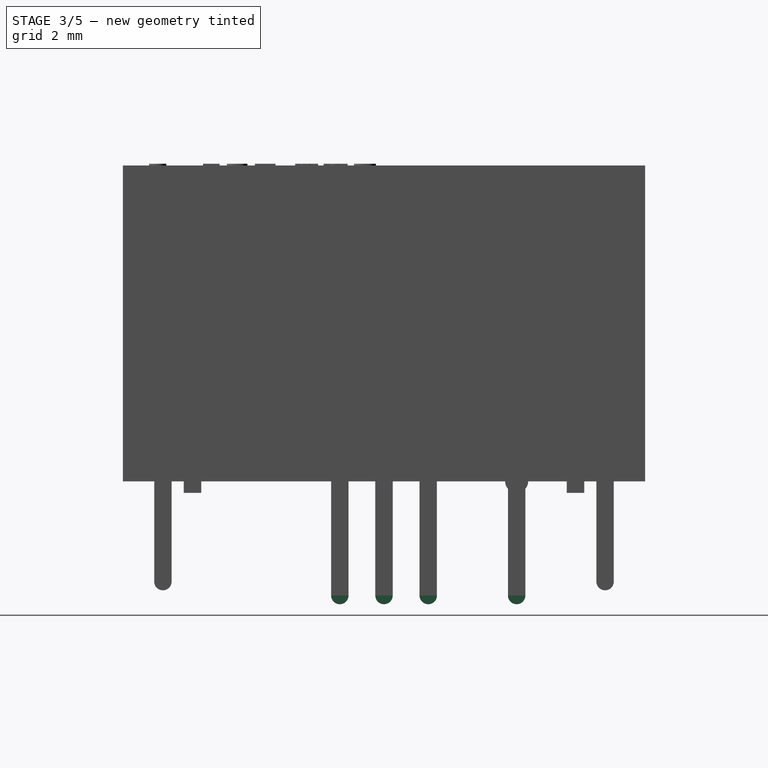
[diagram: stage 3 of 5 — right view after this stage's code; geometry added in this stage tinted green]
FEATURE [Sketcher::SketchObject] Sketch009
  AttachmentOffset = pos=(0,0,2.54) rot=(0,0,1;0rad)
  MapMode = 5
  Placement = pos=(2.54,-1e-15,1e-15) rot=(0.57735,0.57735,0.57735;2.0944rad)
  sketch-geometry (6):
    g0: ArcOfCircle CenterX=0 CenterY=-2.95 CenterZ=0 NormalX=0 NormalY=0 NormalZ=1 AngleXU=0 Radius=0.25 StartAngle=3.14159 EndAngle=6.28319
    g1: LineSegment StartX=-0.25 StartY=-2.95 StartZ=0 EndX=-0.25 EndY=0.33 EndZ=0
    g2: LineSegment StartX=-0.25 StartY=0.33 StartZ=0 EndX=0.25 EndY=0.33 EndZ=0
    g3: LineSegment StartX=0.25 StartY=0.33 StartZ=0 EndX=0.25 EndY=-2.95 EndZ=0
    g4: GeomPoint X=-0.25 Y=0 Z=0
    g5: GeomPoint X=0 Y=-3.2 Z=0
  constraints (16):
    c: Tangent(g0,g1) = 1.5708
    c: Coincident(g1,g2)
    c: Coincident(g2,g3)
    c: Coincident(g3,g0)
    c: Vertical(g3)
    c: Equal(g3,g1)
    c: Vertical(g1)
    c: Horizontal(g2)
    c: PointOnObject(g4,g1)
    c: PointOnObject(g4,g-1)
    c: DistanceY(g4,g1) = 0.33
    c: DistanceX(g0,g0) = 0.5
    c: PointOnObject(g5,g0)
    c: Vertical(g5,g0)
    c: DistanceY(g5,g-1) = 3.2
    c: PointOnObject(g0,g-2)
FEATURE [PartDesign::Pad] Pad005
  Length = 0.25
  Length2 = 100
  Midplane = true
  Placement = pos=(2.54,-1e-15,1e-15) rot=(0.57735,0.57735,0.57735;2.0944rad)
  Profile = -> Sketch009
  Reversed = true
  Type = 0
FEATURE [PartDesign::Body] Body  label="EC2-NU_Body"
  Group = -> [Sketch,Pad,Sketch003,Pocket,Sketch011,Pad008,Mirrored,Sketch012,Pocket004,Sketch013,Pad009,ShapeString,Sketch014,Pad010,Pad007]
  Origin = -> Origin
  Tip = -> Pad007
FEATURE [Sketcher::SketchObject] Sketch015
  MapMode = 5
  Placement = pos=(0,0,9.4) rot=(0,0,1;0rad)
  sketch-geometry (4):
    g0: ArcOfCircle CenterX=-3 CenterY=-6.5 CenterZ=0 NormalX=0 NormalY=0 NormalZ=1 AngleXU=0 Radius=0.25 StartAngle=1.5708 EndAngle=4.71239
    g1: ArcOfCircle CenterX=3 CenterY=-6.5 CenterZ=0 NormalX=0 NormalY=0 NormalZ=1 AngleXU=0 Radius=0.25 StartAngle=4.71239 EndAngle=7.85398
    g2: LineSegment StartX=-3 StartY=-6.75 StartZ=0 EndX=3 EndY=-6.75 EndZ=0
    g3: LineSegment StartX=-3 StartY=-6.25 StartZ=0 EndX=3 EndY=-6.25 EndZ=0
  constraints (7):
    c: Tangent(g0,g3) = 1.5708
    c: Tangent(g0,g2) = -1.5708
    c: Tangent(g2,g1) = -1.5708
    c: Tangent(g3,g1) = 1.5708
    c: Horizontal(g2)
    c: Symmetric(g1,g0,g-2)
    c: DistanceY(g1,g1) = 0.5
FEATURE [Sketcher::SketchObject] Sketch017
  AttachmentOffset = pos=(0,0,2.54) rot=(0,0,1;0rad)
  MapMode = 5
  Placement = pos=(2.54,-1e-15,1e-15) rot=(0.57735,0.57735,0.57735;2.0944rad)
  sketch-geometry (6):
    g0: ArcOfCircle CenterX=0 CenterY=-2.95 CenterZ=0 NormalX=0 NormalY=0 NormalZ=1 AngleXU=0 Radius=0.25 StartAngle=3.14159 EndAngle=6.28319
    g1: LineSegment StartX=-0.25 StartY=-2.95 StartZ=0 EndX=-0.25 EndY=0.33 EndZ=0
    g2: LineSegment StartX=-0.25 StartY=0.33 StartZ=0 EndX=0.25 EndY=0.33 EndZ=0
    g3: LineSegment StartX=0.25 StartY=0.33 StartZ=0 EndX=0.25 EndY=-2.95 EndZ=0
    g4: GeomPoint X=-0.25 Y=0 Z=0
    g5: GeomPoint X=0 Y=-3.2 Z=0
  constraints (16):
    c: Tangent(g0,g1) = 1.5708
    c: Coincident(g1,g2)
    c: Coincident(g2,g3)
    c: Coincident(g3,g0)
    c: Vertical(g3)
    c: Equal(g3,g1)
    c: Vertical(g1)
    c: Horizontal(g2)
    c: PointOnObject(g4,g1)
    c: PointOnObject(g4,g-1)
    c: DistanceY(g4,g1) = 0.33
    c: DistanceX(g0,g0) = 0.5
    c: PointOnObject(g5,g0)
    c: Vertical(g5,g0)
    c: DistanceY(g5,g-1) = 3.2
    c: PointOnObject(g0,g-2)
FEATURE [PartDesign::Pad] Pad012
  Length = 0.25
  Length2 = 100
  Midplane = true
  Placement = pos=(2.54,-1e-15,1e-15) rot=(0.57735,0.57735,0.57735;2.0944rad)
  Profile = -> Sketch017
  Reversed = true
  Type = 0
FEATURE [PartDesign::Body] Body005
  BaseFeature = -> Pad005
  Group = -> [Clone002]
  Origin = -> Origin008
  Placement = pos=(0,-1.27,0) rot=(0,0,1;0rad)
  Tip = -> Clone002
FEATURE [PartDesign::FeatureBase] Clone003
  BaseFeature = -> Pad005
  Placement = pos=(2.54,-1e-15,1e-15) rot=(0.57735,0.57735,0.57735;2.0944rad)
FEATURE [App::Part] Part  label="EC2-NU"
  Group = -> [Body,Sketch009,Pad005,Body003,Body004,Body005,Body006,Array,Array006]
  Origin = -> Origin001
FEATURE [PartDesign::FeatureBase] Clone004
  BaseFeature = -> Pad012
  Placement = pos=(2.54,-1e-15,1e-15) rot=(0.57735,0.57735,0.57735;2.0944rad)
FEATURE [PartDesign::Body] Body007
  BaseFeature = -> Pad012
  Group = -> [Clone004]
  Origin = -> Origin010
  Placement = pos=(0,-6.35,0) rot=(0,0,1;0rad)
  Tip = -> Clone004
FEATURE [PartDesign::FeatureBase] Clone005
  BaseFeature = -> Pad012
  Placement = pos=(2.54,-1e-15,1e-15) rot=(0.57735,0.57735,0.57735;2.0944rad)
FEATURE [PartDesign::Body] Body008
  BaseFeature = -> Pad012
  Group = -> [Clone005]
  Origin = -> Origin011
  Placement = pos=(-5.08,-6.35,0) rot=(0,0,1;0rad)
  Tip = -> Clone005
FEATURE [PartDesign::FeatureBase] Clone006
  BaseFeature = -> Pad012
  Placement = pos=(2.54,-1e-15,1e-15) rot=(0.57735,0.57735,0.57735;2.0944rad)
FEATURE [PartDesign::Body] Body009
  BaseFeature = -> Pad012
  Group = -> [Clone006]
  Origin = -> Origin012
  Placement = pos=(0,-1.27,0) rot=(0,0,1;0rad)
  Tip = -> Clone006
FEATURE [PartDesign::FeatureBase] Clone007
  BaseFeature = -> Pad012
  Placement = pos=(2.54,-1e-15,1e-15) rot=(0.57735,0.57735,0.57735;2.0944rad)
FEATURE [PartDesign::Body] Body010
  BaseFeature = -> Pad012
  Group = -> [Clone007]
  Origin = -> Origin013
  Placement = pos=(-5.08,-1.27,0) rot=(0,0,1;0rad)
  Tip = -> Clone007
FEATURE [Part::FeaturePython] Array007  # Draft array (typed FeaturePython)
  Angle = 360
  ArrayType = 0
  Axis = (0,0,1)
  Base = -> Body009
  Center = (0,0,0)
  Fuse = false
  IntervalAxis = (0,0,0)
  IntervalX = (1,0,0)
  IntervalY = (0,2.54,0)
  IntervalZ = (0,0,1)
  NumberPolar = 1
  NumberX = 1
  NumberY = 3
  NumberZ = 1
FEATURE [Part::FeaturePython] Array008  # Draft array (typed FeaturePython)
  Angle = 360
  ArrayType = 0
  Axis = (0,0,1)
  Base = -> Body010
  Center = (0,0,0)
  Fuse = false
  IntervalAxis = (0,0,0)
  IntervalX = (1,0,0)
  IntervalY = (0,2.54,0)
  IntervalZ = (0,0,1)
  NumberPolar = 1
  NumberX = 1
  NumberY = 3
  NumberZ = 1
FEATURE [PartDesign::FeatureBase] Clone009
  BaseFeature = -> Pad026
  Placement = pos=(2.54,-1e-15,1e-15) rot=(0.57735,0.57735,0.57735;2.0944rad)
FEATURE [PartDesign::Body] Body011
  BaseFeature = -> Pad026
  Group = -> [Clone009]
  Origin = -> Origin017
  Placement = pos=(0,-6.35,0) rot=(0,0,1;0rad)
  Tip = -> Clone009
FEATURE [PartDesign::FeatureBase] Clone010
  BaseFeature = -> Pad026
  Placement = pos=(2.54,-1e-15,1e-15) rot=(0.57735,0.57735,0.57735;2.0944rad)
FEATURE [PartDesign::FeatureBase] Clone011
  BaseFeature = -> Pad026
  Placement = pos=(2.54,-1e-15,1e-15) rot=(0.57735,0.57735,0.57735;2.0944rad)
FEATURE [PartDesign::Body] Body012
  Group = -> [Clone010]
  Origin = -> Origin018
  Placement = pos=(-5.08,-6.35,0) rot=(0,0,1;0rad)
  Tip = -> Clone010
FEATURE [PartDesign::Body] Body013
  Group = -> [Clone011]
  Origin = -> Origin019
  Placement = pos=(-5.08,-1.27,0) rot=(0,0,1;0rad)
  Tip = -> Clone011
FEATURE [Part::FeaturePython] Array009  # Draft array (typed FeaturePython)
  Angle = 360
  ArrayType = 0
  Axis = (0,0,1)
  Base = -> Body013
  Center = (0,0,0)
  Fuse = false
  IntervalAxis = (0,0,0)
  IntervalX = (1,0,0)
  IntervalY = (0,2.54,0)
  IntervalZ = (0,0,1)
  NumberPolar = 1
  NumberX = 1
  NumberY = 3
  NumberZ = 1
FEATURE [PartDesign::Mirrored] Mirrored003
  BaseFeature = -> Pad030
  MirrorPlane = -> XZ_Plane015
  Originals = -> [Pad030]
FEATURE [Sketcher::SketchObject] Sketch036
  ExternalGeometry = -> [Mirrored003]
  MapMode = 5
  Placement = pos=(0,0,0.33) rot=(1,0,0;3.14159rad)
  Support = -> [Mirrored003]
  sketch-geometry (12):
    g0: LineSegment StartX=1.25 StartY=5.75 StartZ=0 EndX=-1.25 EndY=5.75 EndZ=0
    g1: LineSegment StartX=-1.25 StartY=5.75 StartZ=0 EndX=-1.25 EndY=5.25 EndZ=0
    g2: LineSegment StartX=-1.25 StartY=5.25 StartZ=0 EndX=1.25 EndY=5.25 EndZ=0
    g3: LineSegment StartX=1.25 StartY=5.25 StartZ=0 EndX=1.25 EndY=5.75 EndZ=0
    g4: LineSegment StartX=-1.25 StartY=-5.25 StartZ=0 EndX=1.25 EndY=-5.25 EndZ=0
    g5: LineSegment StartX=1.25 StartY=-5.25 StartZ=0 EndX=1.25 EndY=-5.75 EndZ=0
    g6: LineSegment StartX=1.25 StartY=-5.75 StartZ=0 EndX=-1.25 EndY=-5.75 EndZ=0
    g7: LineSegment StartX=-1.25 StartY=-5.75 StartZ=0 EndX=-1.25 EndY=-5.25 EndZ=0
    g8: LineSegment StartX=-3.55 StartY=7.3 StartZ=0 EndX=3.55 EndY=7.3 EndZ=0
    g9: LineSegment StartX=3.55 StartY=7.3 StartZ=0 EndX=3.55 EndY=-7.3 EndZ=0
    g10: LineSegment StartX=3.55 StartY=-7.3 StartZ=0 EndX=-3.55 EndY=-7.3 EndZ=0
    g11: LineSegment StartX=-3.55 StartY=-7.3 StartZ=0 EndX=-3.55 EndY=7.3 EndZ=0
  constraints (30):
    c: Coincident(g0,g1)
    c: Coincident(g1,g2)
    c: Coincident(g2,g3)
    c: Coincident(g3,g0)
    c: Horizontal(g0)
    c: Horizontal(g2)
    c: Vertical(g1)
    c: Vertical(g3)
    c: Coincident(g0,g-5)
    c: Coincident(g1,g-6)
    c: Coincident(g4,g5)
    c: Coincident(g5,g6)
    c: Coincident(g6,g7)
    c: Coincident(g7,g4)
    c: Horizontal(g4)
    c: Horizontal(g6)
    c: Vertical(g5)
    c: Vertical(g7)
    c: Coincident(g4,g-7)
    c: Coincident(g5,g-8)
    c: Coincident(g8,g9)
    c: Coincident(g9,g10)
    c: Coincident(g10,g11)
    c: Coincident(g11,g8)
    c: Horizontal(g8)
    c: Vertical(g9)
    c: DistanceX(g8,g-4) = 0.2
    c: DistanceY(g8,g-4) = 0.2
    c: Symmetric(g9,g10,g-2)
    c: Symmetric(g8,g10,g-1)
FEATURE [PartDesign::Pocket] Pocket010
  BaseFeature = -> Mirrored003
  Length = 0.1
  Length2 = 100
  Profile = -> Sketch036
  Type = 0
FEATURE [Sketcher::SketchObject] Sketch035
  MapMode = 5
  Placement = pos=(0,0,0.43) rot=(1,0,0;3.14159rad)
  Support = -> [Pocket010]
  sketch-geometry (8):
    g0: LineSegment StartX=-1.62309 StartY=4.64048 StartZ=0 EndX=1.62309 EndY=4.64048 EndZ=0
    g1: LineSegment StartX=2.49814 StartY=3.76544 StartZ=0 EndX=2.49814 EndY=-3.76544 EndZ=0
    g2: LineSegment StartX=1.62309 StartY=-4.64048 StartZ=0 EndX=-1.62309 EndY=-4.64048 EndZ=0
    g3: LineSegment StartX=-2.49814 StartY=-3.76544 StartZ=0 EndX=-2.49814 EndY=3.76544 EndZ=0
    g4: ArcOfCircle CenterX=-1.62309 CenterY=3.76544 CenterZ=0 NormalX=0 NormalY=0 NormalZ=1 AngleXU=0 Radius=0.875044 StartAngle=1.5708 EndAngle=3.14159
    g5: ArcOfCircle CenterX=1.62309 CenterY=3.76544 CenterZ=0 NormalX=0 NormalY=0 NormalZ=1 AngleXU=0 Radius=0.875044 StartAngle=0 EndAngle=1.5708
    g6: ArcOfCircle CenterX=1.62309 CenterY=-3.76544 CenterZ=0 NormalX=0 NormalY=0 NormalZ=1 AngleXU=0 Radius=0.875044 StartAngle=4.71239 EndAngle=6.28319
    g7: ArcOfCircle CenterX=-1.62309 CenterY=-3.76544 CenterZ=0 NormalX=0 NormalY=0 NormalZ=1 AngleXU=0 Radius=0.875044 StartAngle=3.14159 EndAngle=4.71239
  constraints (15):
    c: Horizontal(g0)
    c: Horizontal(g2)
    c: Vertical(g1)
    c: Vertical(g3)
    c: Tangent(g0,g4) = 1.5708
    c: Tangent(g3,g4) = 1.5708
    c: Tangent(g0,g5) = 1.5708
    c: Tangent(g1,g5) = 1.5708
    c: Tangent(g1,g6) = 1.5708
    c: Tangent(g2,g6) = 1.5708
    c: Tangent(g2,g7) = 1.5708
    c: Tangent(g3,g7) = 1.5708
    c: Equal(g5,g6)
    c: Symmetric(g3,g1,g-2)
    c: Symmetric(g0,g2,g-1)
FEATURE [PartDesign::Pad] Pad027
  BaseFeature = -> Pocket010
  Length = 0.05
  Length2 = 100
  Profile = -> Sketch035
  Type = 0
FEATURE [PartDesign::Pad] Pad029  label="CoilMarkingPad003"
  BaseFeature = -> Pad027
  Length = 0.05
  Length2 = 100
  Profile = -> Sketch031
  Type = 0
FEATURE [Part::Part2DObjectPython] ShapeString003  # Draft 2D object (typed FeaturePython)
  AttachmentOffset = pos=(-1,-1,0) rot=(0,0,1;-1.5708rad)
  FontFile = <userpath>/Desktop/GitHub/freecad-projects/00-fonts/coolvetica condensed rg.ttf
  MapMode = 6
  Placement = pos=(-2,-5.25,9.4) rot=(0,0,-1;4.71239rad)
  Size = 0.75
  String = EC2 NJ
  Support = -> [Pad029]
  Tracking = 0.125
FEATURE [PartDesign::Pad] Pad025  label="ShapeStringPad003"
  BaseFeature = -> Pad029
  Length = 0.05
  Length2 = 100
  Profile = -> ShapeString003
  Type = 0
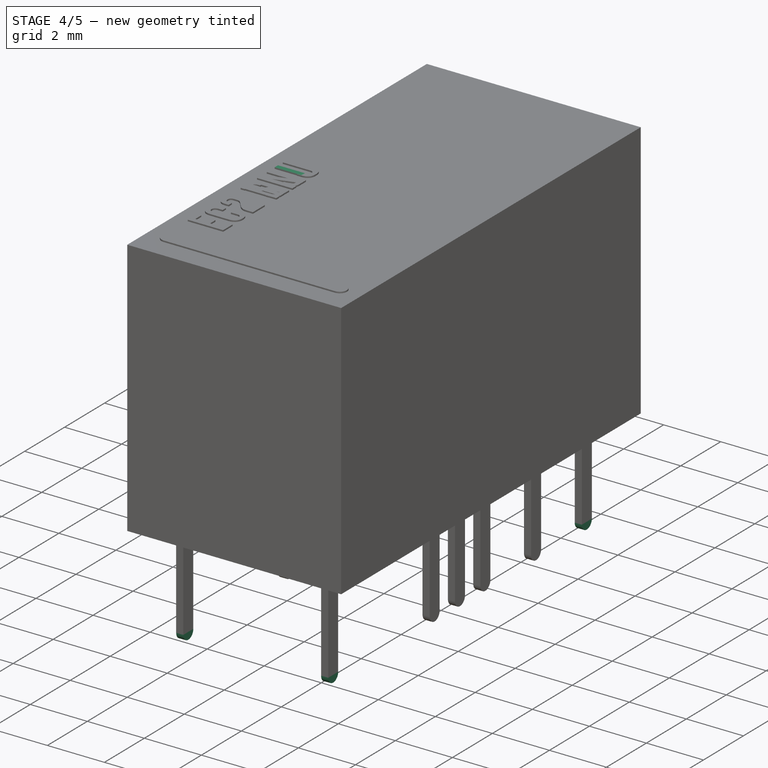
[diagram: stage 4 of 5 — iso view after this stage's code; geometry added in this stage tinted green]
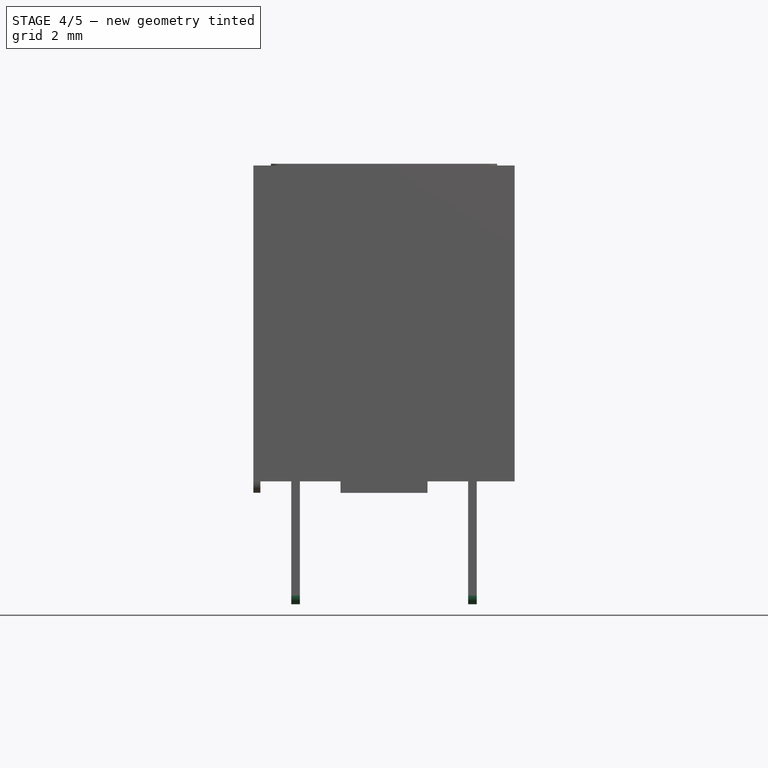
[diagram: stage 4 of 5 — front view after this stage's code; geometry added in this stage tinted green]
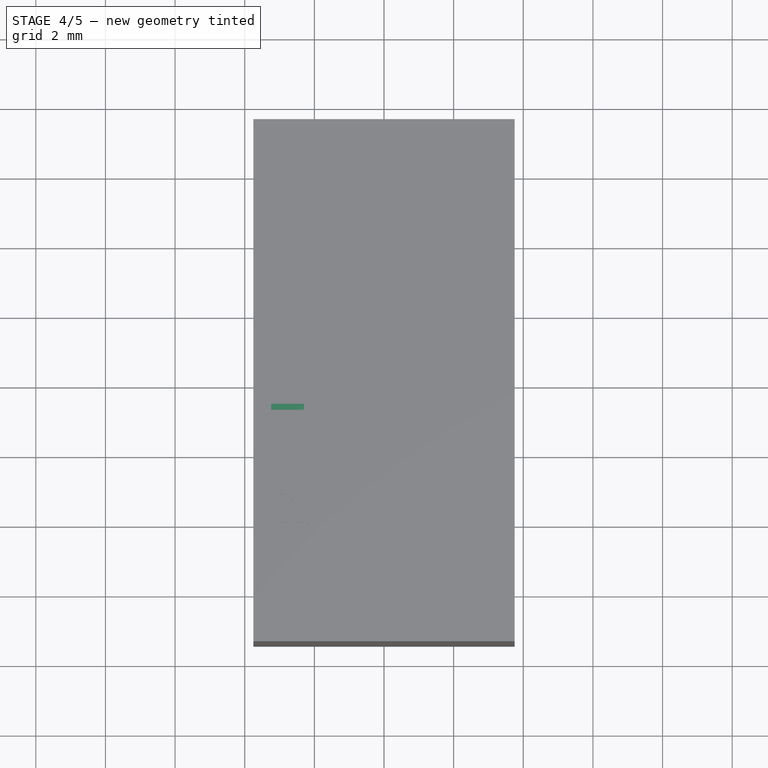
[diagram: stage 4 of 5 — top view after this stage's code; geometry added in this stage tinted green]
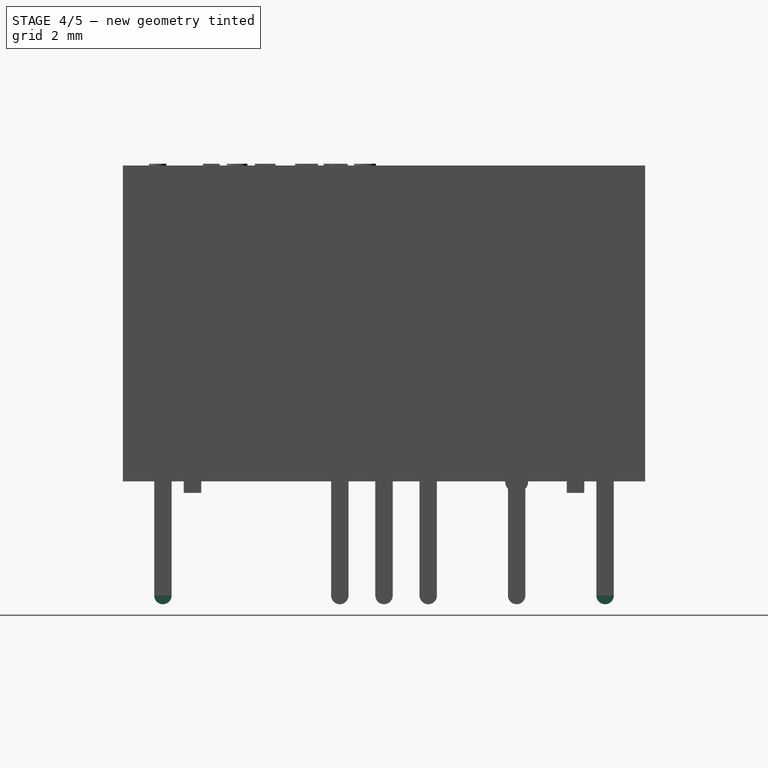
[diagram: stage 4 of 5 — right view after this stage's code; geometry added in this stage tinted green]
FEATURE [PartDesign::Body] Body001  label="EC2-SNU_Body"
  Group = -> [Sketch021,Pad014,Sketch018,Pocket005,Sketch016,Pad017,Mirrored001,Sketch020,Pocket006,Sketch019,Pad013,ShapeString001,Sketch015,Pad016,Pad011]
  Origin = -> Origin002
  Tip = -> Pad011
FEATURE [Sketcher::SketchObject] Sketch028
  AttachmentOffset = pos=(0,0,2.54) rot=(0,0,1;0rad)
  MapMode = 5
  Placement = pos=(2.54,-1e-15,1e-15) rot=(0.57735,0.57735,0.57735;2.0944rad)
  sketch-geometry (6):
    g0: ArcOfCircle CenterX=0 CenterY=-2.95 CenterZ=0 NormalX=0 NormalY=0 NormalZ=1 AngleXU=0 Radius=0.25 StartAngle=3.14159 EndAngle=6.28319
    g1: LineSegment StartX=-0.25 StartY=-2.95 StartZ=0 EndX=-0.25 EndY=0.33 EndZ=0
    g2: LineSegment StartX=-0.25 StartY=0.33 StartZ=0 EndX=0.25 EndY=0.33 EndZ=0
    g3: LineSegment StartX=0.25 StartY=0.33 StartZ=0 EndX=0.25 EndY=-2.95 EndZ=0
    g4: GeomPoint X=-0.25 Y=0 Z=0
    g5: GeomPoint X=0 Y=-3.2 Z=0
  constraints (16):
    c: Tangent(g0,g1) = 1.5708
    c: Coincident(g1,g2)
    c: Coincident(g2,g3)
    c: Coincident(g3,g0)
    c: Vertical(g3)
    c: Equal(g3,g1)
    c: Vertical(g1)
    c: Horizontal(g2)
    c: PointOnObject(g4,g1)
    c: PointOnObject(g4,g-1)
    c: DistanceY(g4,g1) = 0.33
    c: DistanceX(g0,g0) = 0.5
    c: PointOnObject(g5,g0)
    c: Vertical(g5,g0)
    c: DistanceY(g5,g-1) = 3.2
    c: PointOnObject(g0,g-2)
FEATURE [PartDesign::Pad] Pad018
  Length = 0.25
  Length2 = 100
  Midplane = true
  Placement = pos=(2.54,-1e-15,1e-15) rot=(0.57735,0.57735,0.57735;2.0944rad)
  Profile = -> Sketch028
  Reversed = true
  Type = 0
FEATURE [Part::FeaturePython] Array005  # Draft array (typed FeaturePython)
  Angle = 360
  ArrayType = 0
  Axis = (0,0,1)
  Base = -> Pad018
  Center = (0,0,0)
  Fuse = false
  IntervalAxis = (0,0,0)
  IntervalX = (-5.08,0,0)
  IntervalY = (0,-6.35,0)
  IntervalZ = (0,0,1)
  NumberPolar = 1
  NumberX = 2
  NumberY = 1
  NumberZ = 1
  Placement = pos=(0,-6.35,0) rot=(0,0,1;0rad)
FEATURE [Sketcher::SketchObject] Sketch030
  MapMode = 5
  Support = -> [XY_Plane004]
  sketch-geometry (4):
    g0: LineSegment StartX=3.75 StartY=-7.5 StartZ=0 EndX=-3.75 EndY=-7.5 EndZ=0
    g1: LineSegment StartX=-3.75 StartY=-7.5 StartZ=0 EndX=-3.75 EndY=7.5 EndZ=0
    g2: LineSegment StartX=-3.75 StartY=7.5 StartZ=0 EndX=3.75 EndY=7.5 EndZ=0
    g3: LineSegment StartX=3.75 StartY=7.5 StartZ=0 EndX=3.75 EndY=-7.5 EndZ=0
  constraints (10):
    c: Coincident(g0,g1)
    c: Coincident(g1,g2)
    c: Coincident(g2,g3)
    c: Coincident(g3,g0)
    c: Horizontal(g0)
    c: Vertical(g1)
    c: Symmetric(g1,g2,g-2)
    c: Symmetric(g2,g0,g-1)
    c: DistanceX(g2,g2) = 7.5
    c: DistanceY(g3,g3) = 15
FEATURE [PartDesign::Pad] Pad019  label="MainPad002"
  Length = 9.4
  Length2 = 100
  Profile = -> Sketch030
  Type = 0
FEATURE [Sketcher::SketchObject] Sketch025
  ExternalGeometry = -> [Pad019]
  MapMode = 5
  Placement = pos=(-3.75,0,0) rot=(0.57735,-0.57735,-0.57735;2.0944rad)
  Support = -> [Pad019]
  sketch-geometry (4):
    g0: LineSegment StartX=-7.5 StartY=0 StartZ=0 EndX=7.5 EndY=0 EndZ=0
    g1: LineSegment StartX=7.5 StartY=0 StartZ=0 EndX=7.5 EndY=0.33 EndZ=0
    g2: LineSegment StartX=7.5 StartY=0.33 StartZ=0 EndX=-7.5 EndY=0.33 EndZ=0
    g3: LineSegment StartX=-7.5 StartY=0.33 StartZ=0 EndX=-7.5 EndY=0 EndZ=0
  constraints (11):
    c: Coincident(g0,g1)
    c: Coincident(g1,g2)
    c: Coincident(g2,g3)
    c: Coincident(g3,g0)
    c: Horizontal(g0)
    c: Horizontal(g2)
    c: Vertical(g1)
    c: Vertical(g3)
    c: Coincident(g0,g-3)
    c: PointOnObject(g1,g-4)
    c: DistanceY(g1,g1) = 0.33
FEATURE [PartDesign::Pocket] Pocket007  label="BottomPocket002"
  BaseFeature = -> Pad019
  Length = 5
  Length2 = 100
  Profile = -> Sketch025
  Type = 1
FEATURE [Sketcher::SketchObject] Sketch027
  MapMode = 5
  Placement = pos=(0,0,0.33) rot=(1,0,0;3.14159rad)
  Support = -> [Pocket007]
  sketch-geometry (4):
    g0: LineSegment StartX=-1.25 StartY=5.25 StartZ=0 EndX=1.25 EndY=5.25 EndZ=0
    g1: LineSegment StartX=1.25 StartY=5.25 StartZ=0 EndX=1.25 EndY=5.75 EndZ=0
    g2: LineSegment StartX=1.25 StartY=5.75 StartZ=0 EndX=-1.25 EndY=5.75 EndZ=0
    g3: LineSegment StartX=-1.25 StartY=5.75 StartZ=0 EndX=-1.25 EndY=5.25 EndZ=0
  constraints (11):
    c: Coincident(g0,g1)
    c: Coincident(g1,g2)
    c: Coincident(g2,g3)
    c: Coincident(g3,g0)
    c: Horizontal(g0)
    c: Vertical(g1)
    c: Vertical(g3)
    c: Symmetric(g2,g1,g-2)
    c: DistanceX(g2,g2) = 2.5
    c: DistanceY(g1,g1) = 0.5
    c: DistanceY(g-1,g0) = 5.25
FEATURE [PartDesign::Pad] Pad022
  BaseFeature = -> Pocket007
  Length = 0.33
  Length2 = 100
  Profile = -> Sketch027
  Type = 0
FEATURE [PartDesign::Mirrored] Mirrored002
  BaseFeature = -> Pad022
  MirrorPlane = -> XZ_Plane004
  Originals = -> [Pad022]
FEATURE [Sketcher::SketchObject] Sketch024
  ExternalGeometry = -> [Mirrored002]
  MapMode = 5
  Placement = pos=(0,0,0.33) rot=(1,0,0;3.14159rad)
  Support = -> [Mirrored002]
  sketch-geometry (12):
    g0: LineSegment StartX=1.25 StartY=5.75 StartZ=0 EndX=-1.25 EndY=5.75 EndZ=0
    g1: LineSegment StartX=-1.25 StartY=5.75 StartZ=0 EndX=-1.25 EndY=5.25 EndZ=0
    g2: LineSegment StartX=-1.25 StartY=5.25 StartZ=0 EndX=1.25 EndY=5.25 EndZ=0
    g3: LineSegment StartX=1.25 StartY=5.25 StartZ=0 EndX=1.25 EndY=5.75 EndZ=0
    g4: LineSegment StartX=-1.25 StartY=-5.25 StartZ=0 EndX=1.25 EndY=-5.25 EndZ=0
    g5: LineSegment StartX=1.25 StartY=-5.25 StartZ=0 EndX=1.25 EndY=-5.75 EndZ=0
    g6: LineSegment StartX=1.25 StartY=-5.75 StartZ=0 EndX=-1.25 EndY=-5.75 EndZ=0
    g7: LineSegment StartX=-1.25 StartY=-5.75 StartZ=0 EndX=-1.25 EndY=-5.25 EndZ=0
    g8: LineSegment StartX=-3.55 StartY=7.3 StartZ=0 EndX=3.55 EndY=7.3 EndZ=0
    g9: LineSegment StartX=3.55 StartY=7.3 StartZ=0 EndX=3.55 EndY=-7.3 EndZ=0
    g10: LineSegment StartX=3.55 StartY=-7.3 StartZ=0 EndX=-3.55 EndY=-7.3 EndZ=0
    g11: LineSegment StartX=-3.55 StartY=-7.3 StartZ=0 EndX=-3.55 EndY=7.3 EndZ=0
  constraints (30):
    c: Coincident(g0,g1)
    c: Coincident(g1,g2)
    c: Coincident(g2,g3)
    c: Coincident(g3,g0)
    c: Horizontal(g0)
    c: Horizontal(g2)
    c: Vertical(g1)
    c: Vertical(g3)
    c: Coincident(g0,g-5)
    c: Coincident(g1,g-6)
    c: Coincident(g4,g5)
    c: Coincident(g5,g6)
    c: Coincident(g6,g7)
    c: Coincident(g7,g4)
    c: Horizontal(g4)
    c: Horizontal(g6)
    c: Vertical(g5)
    c: Vertical(g7)
    c: Coincident(g4,g-7)
    c: Coincident(g5,g-8)
    c: Coincident(g8,g9)
    c: Coincident(g9,g10)
    c: Coincident(g10,g11)
    c: Coincident(g11,g8)
    c: Horizontal(g8)
    c: Vertical(g9)
    c: DistanceX(g8,g-4) = 0.2
    c: DistanceY(g8,g-4) = 0.2
    c: Symmetric(g9,g10,g-2)
    c: Symmetric(g8,g10,g-1)
FEATURE [PartDesign::Pocket] Pocket008
  BaseFeature = -> Mirrored002
  Length = 0.1
  Length2 = 100
  Profile = -> Sketch024
  Type = 0
FEATURE [Sketcher::SketchObject] Sketch023
  MapMode = 5
  Placement = pos=(0,0,0.43) rot=(1,0,0;3.14159rad)
  Support = -> [Pocket008]
  sketch-geometry (8):
    g0: LineSegment StartX=-1.62309 StartY=4.64048 StartZ=0 EndX=1.62309 EndY=4.64048 EndZ=0
    g1: LineSegment StartX=2.49814 StartY=3.76544 StartZ=0 EndX=2.49814 EndY=-3.76544 EndZ=0
    g2: LineSegment StartX=1.62309 StartY=-4.64048 StartZ=0 EndX=-1.62309 EndY=-4.64048 EndZ=0
    g3: LineSegment StartX=-2.49814 StartY=-3.76544 StartZ=0 EndX=-2.49814 EndY=3.76544 EndZ=0
    g4: ArcOfCircle CenterX=-1.62309 CenterY=3.76544 CenterZ=0 NormalX=0 NormalY=0 NormalZ=1 AngleXU=0 Radius=0.875044 StartAngle=1.5708 EndAngle=3.14159
    g5: ArcOfCircle CenterX=1.62309 CenterY=3.76544 CenterZ=0 NormalX=0 NormalY=0 NormalZ=1 AngleXU=0 Radius=0.875044 StartAngle=0 EndAngle=1.5708
    g6: ArcOfCircle CenterX=1.62309 CenterY=-3.76544 CenterZ=0 NormalX=0 NormalY=0 NormalZ=1 AngleXU=0 Radius=0.875044 StartAngle=4.71239 EndAngle=6.28319
    g7: ArcOfCircle CenterX=-1.62309 CenterY=-3.76544 CenterZ=0 NormalX=0 NormalY=0 NormalZ=1 AngleXU=0 Radius=0.875044 StartAngle=3.14159 EndAngle=4.71239
  constraints (15):
    c: Horizontal(g0)
    c: Horizontal(g2)
    c: Vertical(g1)
    c: Vertical(g3)
    c: Tangent(g0,g4) = 1.5708
    c: Tangent(g3,g4) = 1.5708
    c: Tangent(g0,g5) = 1.5708
    c: Tangent(g1,g5) = 1.5708
    c: Tangent(g1,g6) = 1.5708
    c: Tangent(g2,g6) = 1.5708
    c: Tangent(g2,g7) = 1.5708
    c: Tangent(g3,g7) = 1.5708
    c: Equal(g5,g6)
    c: Symmetric(g3,g1,g-2)
    c: Symmetric(g0,g2,g-1)
FEATURE [PartDesign::Pad] Pad024
  BaseFeature = -> Pocket008
  Length = 0.05
  Length2 = 100
  Profile = -> Sketch023
  Type = 0
FEATURE [Sketcher::SketchObject] Sketch029
  MapMode = 5
  Placement = pos=(-3.75,0,0) rot=(0.57735,-0.57735,-0.57735;2.0944rad)
  Support = -> [Pocket007]
  sketch-geometry (3):
    g0: LineSegment StartX=-4.14 StartY=0.33 StartZ=0 EndX=-3.48 EndY=0.33 EndZ=0
    g1: ArcOfCircle CenterX=-3.81 CenterY=0.33 CenterZ=0 NormalX=0 NormalY=0 NormalZ=1 AngleXU=0 Radius=0.33 StartAngle=3.14159 EndAngle=6.28319
    g2: GeomPoint X=-3.81 Y=0 Z=0
  constraints (9):
    c: Horizontal(g0)
    c: DistanceX(g0,g0) = 0.66
    c: Coincident(g1,g0)
    c: Coincident(g1,g0)
    c: PointOnObject(g2,g1)
    c: PointOnObject(g2,g-1)
    c: DistanceY(g2,g0) = 0.33
    c: Tangent(g1,g-1)
    c: DistanceX(g2,g-1) = 3.81
FEATURE [PartDesign::Pad] Pad023  label="StandoffPad002"
  BaseFeature = -> Pad024
  Length = 0.2
  Length2 = 100
  Profile = -> Sketch029
  Refine = true
  Reversed = true
  Type = 0
FEATURE [Sketcher::SketchObject] Sketch026
  ExternalGeometry = -> [Pad023]
  MapMode = 5
  Placement = pos=(0,0,9.4) rot=(0,0,1;0rad)
  Support = -> [Pad023]
  sketch-geometry (4):
    g0: ArcOfCircle CenterX=-3 CenterY=-6.5 CenterZ=0 NormalX=0 NormalY=0 NormalZ=1 AngleXU=0 Radius=0.25 StartAngle=1.5708 EndAngle=4.71239
    g1: ArcOfCircle CenterX=3 CenterY=-6.5 CenterZ=0 NormalX=0 NormalY=0 NormalZ=1 AngleXU=0 Radius=0.25 StartAngle=4.71239 EndAngle=7.85398
    g2: LineSegment StartX=-3 StartY=-6.75 StartZ=0 EndX=3 EndY=-6.75 EndZ=0
    g3: LineSegment StartX=-3 StartY=-6.25 StartZ=0 EndX=3 EndY=-6.25 EndZ=0
  constraints (9):
    c: Tangent(g0,g3) = 1.5708
    c: Tangent(g0,g2) = -1.5708
    c: Tangent(g2,g1) = -1.5708
    c: Tangent(g3,g1) = 1.5708
    c: Horizontal(g2)
    c: Symmetric(g1,g0,g-2)
    c: DistanceY(g1,g1) = 0.5
    c: DistanceX(g-3,g0) = 0.75
    c: DistanceY(g-4,g0) = 1
FEATURE [PartDesign::Pad] Pad021  label="CoilMarkingPad002"
  BaseFeature = -> Pad023
  Length = 0.05
  Length2 = 100
  Profile = -> Sketch026
  Type = 0
FEATURE [Part::Part2DObjectPython] ShapeString002  # Draft 2D object (typed FeaturePython)
  AttachmentOffset = pos=(-1,-1,0) rot=(0,0,1;-1.5708rad)
  FontFile = <userpath>/Desktop/GitHub/freecad-projects/00-fonts/coolvetica condensed rg.ttf
  MapMode = 6
  Placement = pos=(-2,-5.25,9.4) rot=(0,0,-1;4.71239rad)
  Size = 0.75
  String = EC2 TNU
  Support = -> [Pad021]
  Tracking = 0.125
FEATURE [PartDesign::Pad] Pad020  label="ShapeStringPad002"
  BaseFeature = -> Pad021
  Length = 0.05
  Length2 = 100
  Profile = -> ShapeString002
  Type = 0
FEATURE [PartDesign::Body] Body002  label="EC2-TNU_Body"
  Group = -> [Sketch030,Pad019,Sketch025,Pocket007,Sketch029,Sketch027,Pad022,Mirrored002,Sketch024,Pocket008,Sketch023,Pad024,Pad023,ShapeString002,Sketch026,Pad021,Pad020]
  Origin = -> Origin005
  Tip = -> Pad020
FEATURE [Part::FeaturePython] Array004  # Draft array (typed FeaturePython)
  Angle = 360
  ArrayType = 0
  Axis = (0,0,1)
  Base = -> Pad018
  Center = (0,0,0)
  Fuse = false
  IntervalAxis = (0,0,0)
  IntervalX = (-5.08,0,0)
  IntervalY = (0,2.54,0)
  IntervalZ = (0,0,1)
  NumberPolar = 1
  NumberX = 2
  NumberY = 4
  NumberZ = 1
  Placement = pos=(0,-1.27,0) rot=(0,0,1;0rad)
FEATURE [App::Part] Part002  label="EC2-TNU"
  Group = -> [Body002,Sketch028,Pad018,Array005,Array004,Fusion002]
  Origin = -> Origin004
FEATURE [PartDesign::FeatureBase] Clone
  BaseFeature = -> Pad005
  Placement = pos=(2.54,-1e-15,1e-15) rot=(0.57735,0.57735,0.57735;2.0944rad)
FEATURE [PartDesign::Body] Body003
  BaseFeature = -> Pad005
  Group = -> [Clone]
  Origin = -> Origin006
  Placement = pos=(0,-6.35,0) rot=(0,0,1;0rad)
  Tip = -> Clone
FEATURE [PartDesign::FeatureBase] Clone001
  BaseFeature = -> Pad005
  Placement = pos=(2.54,-1e-15,1e-15) rot=(0.57735,0.57735,0.57735;2.0944rad)
FEATURE [PartDesign::Body] Body004
  BaseFeature = -> Pad005
  Group = -> [Clone001]
  Origin = -> Origin007
  Placement = pos=(-5.08,-6.35,0) rot=(0,0,1;0rad)
  Tip = -> Clone001
FEATURE [PartDesign::FeatureBase] Clone002
  BaseFeature = -> Pad005
  Placement = pos=(2.54,-1e-15,1e-15) rot=(0.57735,0.57735,0.57735;2.0944rad)
FEATURE [PartDesign::Body] Body006
  BaseFeature = -> Pad005
  Group = -> [Clone003]
  Origin = -> Origin009
  Placement = pos=(-5.08,-1.27,0) rot=(0,0,1;0rad)
  Tip = -> Clone003
FEATURE [Part::FeaturePython] Array  # Draft array (typed FeaturePython)
  Angle = 360
  ArrayType = 0
  Axis = (0,0,1)
  Base = -> Body005
  Center = (0,0,0)
  Fuse = false
  IntervalAxis = (0,0,0)
  IntervalX = (1,0,0)
  IntervalY = (0,2.54,0)
  IntervalZ = (0,0,1)
  NumberPolar = 1
  NumberX = 1
  NumberY = 3
  NumberZ = 1
FEATURE [Part::FeaturePython] Array006  # Draft array (typed FeaturePython)
  Angle = 360
  ArrayType = 0
  Axis = (0,0,1)
  Base = -> Body006
  Center = (0,0,0)
  Fuse = false
  IntervalAxis = (0,0,0)
  IntervalX = (1,0,0)
  IntervalY = (0,2.54,0)
  IntervalZ = (0,0,1)
  NumberPolar = 1
  NumberX = 1
  NumberY = 3
  NumberZ = 1
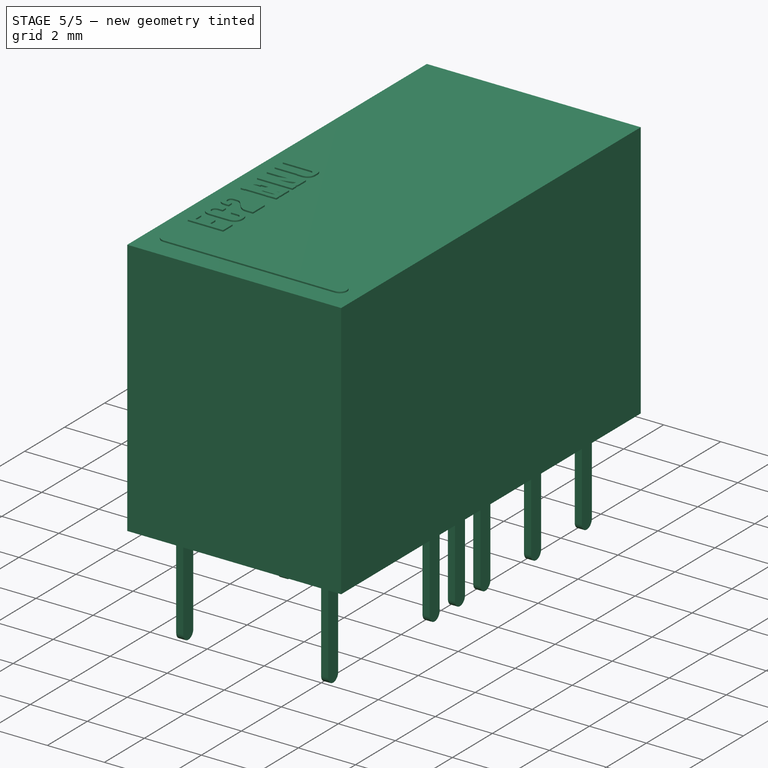
[diagram: stage 5 of 5 — iso view after this stage's code; geometry added in this stage tinted green]
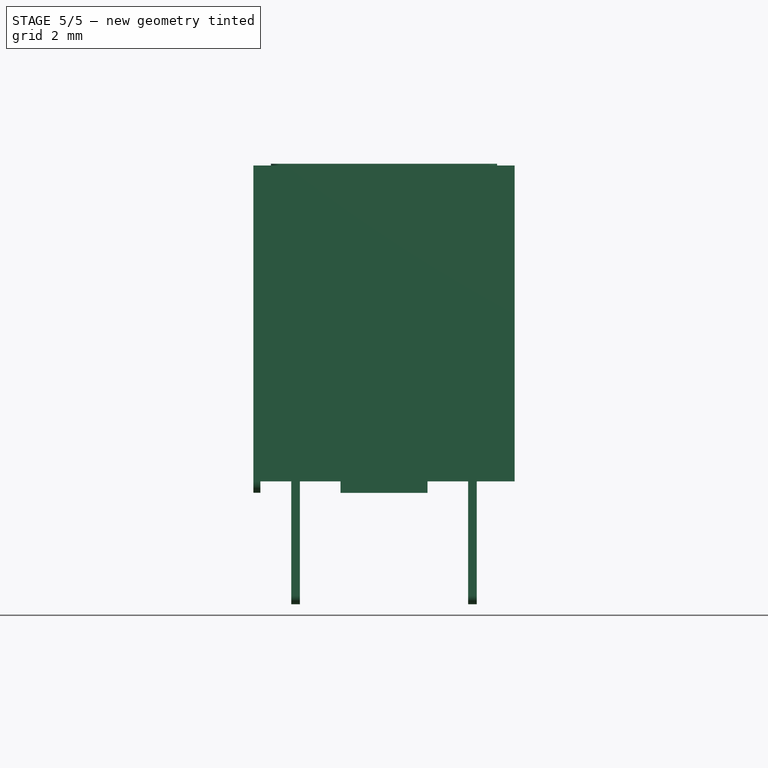
[diagram: stage 5 of 5 — front view after this stage's code; geometry added in this stage tinted green]
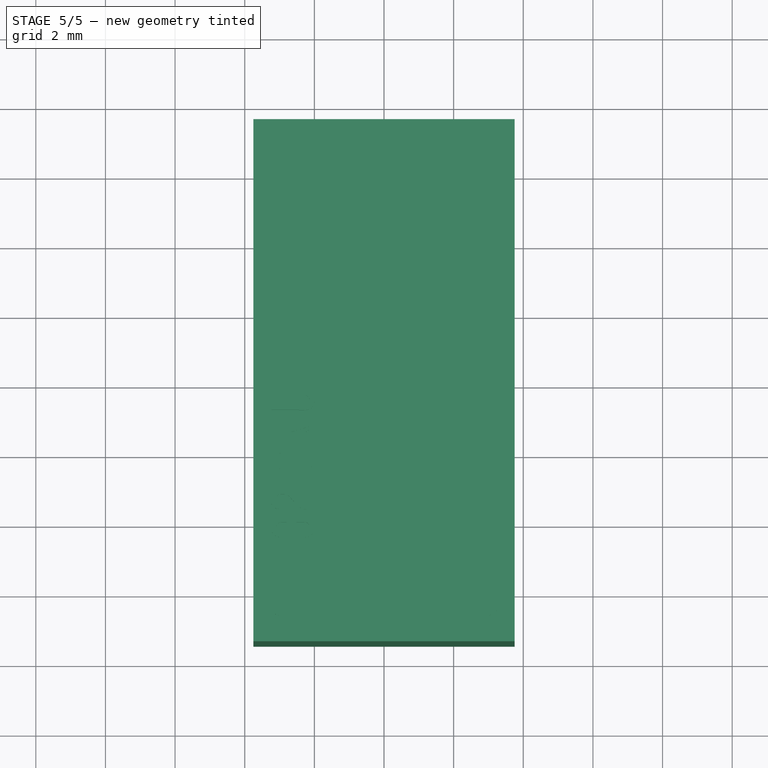
[diagram: stage 5 of 5 — top view after this stage's code; geometry added in this stage tinted green]
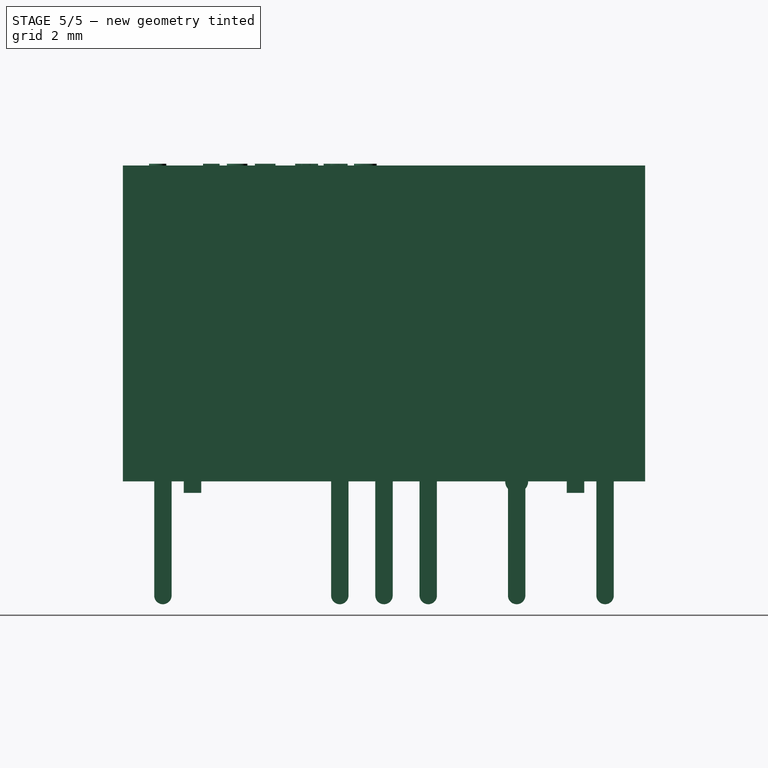
[diagram: stage 5 of 5 — right view after this stage's code; geometry added in this stage tinted green]
FEATURE [Sketcher::SketchObject] Sketch
  MapMode = 5
  Support = -> [XY_Plane]
  sketch-geometry (4):
    g0: LineSegment StartX=3.75 StartY=-7.5 StartZ=0 EndX=-3.75 EndY=-7.5 EndZ=0
    g1: LineSegment StartX=-3.75 StartY=-7.5 StartZ=0 EndX=-3.75 EndY=7.5 EndZ=0
    g2: LineSegment StartX=-3.75 StartY=7.5 StartZ=0 EndX=3.75 EndY=7.5 EndZ=0
    g3: LineSegment StartX=3.75 StartY=7.5 StartZ=0 EndX=3.75 EndY=-7.5 EndZ=0
  constraints (10):
    c: Coincident(g0,g1)
    c: Coincident(g1,g2)
    c: Coincident(g2,g3)
    c: Coincident(g3,g0)
    c: Horizontal(g0)
    c: Vertical(g1)
    c: Symmetric(g1,g2,g-2)
    c: Symmetric(g2,g0,g-1)
    c: DistanceX(g2,g2) = 7.5
    c: DistanceY(g3,g3) = 15
FEATURE [PartDesign::Pad] Pad  label="MainPad"
  Length = 9.4
  Length2 = 100
  Profile = -> Sketch
  Type = 0
FEATURE [Sketcher::SketchObject] Sketch003
  ExternalGeometry = -> [Pad]
  MapMode = 5
  Placement = pos=(-3.75,0,0) rot=(0.57735,-0.57735,-0.57735;2.0944rad)
  Support = -> [Pad]
  sketch-geometry (4):
    g0: LineSegment StartX=-7.5 StartY=0 StartZ=0 EndX=7.5 EndY=0 EndZ=0
    g1: LineSegment StartX=7.5 StartY=0 StartZ=0 EndX=7.5 EndY=0.33 EndZ=0
    g2: LineSegment StartX=7.5 StartY=0.33 StartZ=0 EndX=-7.5 EndY=0.33 EndZ=0
    g3: LineSegment StartX=-7.5 StartY=0.33 StartZ=0 EndX=-7.5 EndY=0 EndZ=0
  constraints (11):
    c: Coincident(g0,g1)
    c: Coincident(g1,g2)
    c: Coincident(g2,g3)
    c: Coincident(g3,g0)
    c: Horizontal(g0)
    c: Horizontal(g2)
    c: Vertical(g1)
    c: Vertical(g3)
    c: Coincident(g0,g-3)
    c: PointOnObject(g1,g-4)
    c: DistanceY(g1,g1) = 0.33
FEATURE [PartDesign::Pocket] Pocket  label="BottomPocket"
  BaseFeature = -> Pad
  Length = 5
  Length2 = 100
  Profile = -> Sketch003
  Type = 1
FEATURE [Sketcher::SketchObject] Sketch011
  MapMode = 5
  Placement = pos=(0,0,0.33) rot=(1,0,0;3.14159rad)
  Support = -> [Pocket]
  sketch-geometry (4):
    g0: LineSegment StartX=-1.25 StartY=5.25 StartZ=0 EndX=1.25 EndY=5.25 EndZ=0
    g1: LineSegment StartX=1.25 StartY=5.25 StartZ=0 EndX=1.25 EndY=5.75 EndZ=0
    g2: LineSegment StartX=1.25 StartY=5.75 StartZ=0 EndX=-1.25 EndY=5.75 EndZ=0
    g3: LineSegment StartX=-1.25 StartY=5.75 StartZ=0 EndX=-1.25 EndY=5.25 EndZ=0
  constraints (11):
    c: Coincident(g0,g1)
    c: Coincident(g1,g2)
    c: Coincident(g2,g3)
    c: Coincident(g3,g0)
    c: Horizontal(g0)
    c: Vertical(g1)
    c: Vertical(g3)
    c: Symmetric(g2,g1,g-2)
    c: DistanceX(g2,g2) = 2.5
    c: DistanceY(g1,g1) = 0.5
    c: DistanceY(g-1,g0) = 5.25
FEATURE [PartDesign::Pad] Pad008
  BaseFeature = -> Pocket
  Length = 0.33
  Length2 = 100
  Profile = -> Sketch011
  Type = 0
FEATURE [PartDesign::Mirrored] Mirrored
  BaseFeature = -> Pad008
  MirrorPlane = -> XZ_Plane
  Originals = -> [Pad008]
FEATURE [Sketcher::SketchObject] Sketch012
  ExternalGeometry = -> [Mirrored]
  MapMode = 5
  Placement = pos=(0,0,0.33) rot=(1,0,0;3.14159rad)
  Support = -> [Mirrored]
  sketch-geometry (12):
    g0: LineSegment StartX=1.25 StartY=5.75 StartZ=0 EndX=-1.25 EndY=5.75 EndZ=0
    g1: LineSegment StartX=-1.25 StartY=5.75 StartZ=0 EndX=-1.25 EndY=5.25 EndZ=0
    g2: LineSegment StartX=-1.25 StartY=5.25 StartZ=0 EndX=1.25 EndY=5.25 EndZ=0
    g3: LineSegment StartX=1.25 StartY=5.25 StartZ=0 EndX=1.25 EndY=5.75 EndZ=0
    g4: LineSegment StartX=-1.25 StartY=-5.25 StartZ=0 EndX=1.25 EndY=-5.25 EndZ=0
    g5: LineSegment StartX=1.25 StartY=-5.25 StartZ=0 EndX=1.25 EndY=-5.75 EndZ=0
    g6: LineSegment StartX=1.25 StartY=-5.75 StartZ=0 EndX=-1.25 EndY=-5.75 EndZ=0
    g7: LineSegment StartX=-1.25 StartY=-5.75 StartZ=0 EndX=-1.25 EndY=-5.25 EndZ=0
    g8: LineSegment StartX=-3.55 StartY=7.3 StartZ=0 EndX=3.55 EndY=7.3 EndZ=0
    g9: LineSegment StartX=3.55 StartY=7.3 StartZ=0 EndX=3.55 EndY=-7.3 EndZ=0
    g10: LineSegment StartX=3.55 StartY=-7.3 StartZ=0 EndX=-3.55 EndY=-7.3 EndZ=0
    g11: LineSegment StartX=-3.55 StartY=-7.3 StartZ=0 EndX=-3.55 EndY=7.3 EndZ=0
  constraints (30):
    c: Coincident(g0,g1)
    c: Coincident(g1,g2)
    c: Coincident(g2,g3)
    c: Coincident(g3,g0)
    c: Horizontal(g0)
    c: Horizontal(g2)
    c: Vertical(g1)
    c: Vertical(g3)
    c: Coincident(g0,g-5)
    c: Coincident(g1,g-6)
    c: Coincident(g4,g5)
    c: Coincident(g5,g6)
    c: Coincident(g6,g7)
    c: Coincident(g7,g4)
    c: Horizontal(g4)
    c: Horizontal(g6)
    c: Vertical(g5)
    c: Vertical(g7)
    c: Coincident(g4,g-7)
    c: Coincident(g5,g-8)
    c: Coincident(g8,g9)
    c: Coincident(g9,g10)
    c: Coincident(g10,g11)
    c: Coincident(g11,g8)
    c: Horizontal(g8)
    c: Vertical(g9)
    c: DistanceX(g8,g-4) = 0.2
    c: DistanceY(g8,g-4) = 0.2
    c: Symmetric(g9,g10,g-2)
    c: Symmetric(g8,g10,g-1)
FEATURE [PartDesign::Pocket] Pocket004
  BaseFeature = -> Mirrored
  Length = 0.1
  Length2 = 100
  Profile = -> Sketch012
  Type = 0
FEATURE [Sketcher::SketchObject] Sketch013
  MapMode = 5
  Placement = pos=(0,0,0.43) rot=(1,0,0;3.14159rad)
  Support = -> [Pocket004]
  sketch-geometry (8):
    g0: LineSegment StartX=-1.62309 StartY=4.64048 StartZ=0 EndX=1.62309 EndY=4.64048 EndZ=0
    g1: LineSegment StartX=2.49814 StartY=3.76544 StartZ=0 EndX=2.49814 EndY=-3.76544 EndZ=0
    g2: LineSegment StartX=1.62309 StartY=-4.64048 StartZ=0 EndX=-1.62309 EndY=-4.64048 EndZ=0
    g3: LineSegment StartX=-2.49814 StartY=-3.76544 StartZ=0 EndX=-2.49814 EndY=3.76544 EndZ=0
    g4: ArcOfCircle CenterX=-1.62309 CenterY=3.76544 CenterZ=0 NormalX=0 NormalY=0 NormalZ=1 AngleXU=0 Radius=0.875044 StartAngle=1.5708 EndAngle=3.14159
    g5: ArcOfCircle CenterX=1.62309 CenterY=3.76544 CenterZ=0 NormalX=0 NormalY=0 NormalZ=1 AngleXU=0 Radius=0.875044 StartAngle=0 EndAngle=1.5708
    g6: ArcOfCircle CenterX=1.62309 CenterY=-3.76544 CenterZ=0 NormalX=0 NormalY=0 NormalZ=1 AngleXU=0 Radius=0.875044 StartAngle=4.71239 EndAngle=6.28319
    g7: ArcOfCircle CenterX=-1.62309 CenterY=-3.76544 CenterZ=0 NormalX=0 NormalY=0 NormalZ=1 AngleXU=0 Radius=0.875044 StartAngle=3.14159 EndAngle=4.71239
  constraints (15):
    c: Horizontal(g0)
    c: Horizontal(g2)
    c: Vertical(g1)
    c: Vertical(g3)
    c: Tangent(g0,g4) = 1.5708
    c: Tangent(g3,g4) = 1.5708
    c: Tangent(g0,g5) = 1.5708
    c: Tangent(g1,g5) = 1.5708
    c: Tangent(g1,g6) = 1.5708
    c: Tangent(g2,g6) = 1.5708
    c: Tangent(g2,g7) = 1.5708
    c: Tangent(g3,g7) = 1.5708
    c: Equal(g5,g6)
    c: Symmetric(g3,g1,g-2)
    c: Symmetric(g0,g2,g-1)
FEATURE [PartDesign::Pad] Pad009
  BaseFeature = -> Pocket004
  Length = 0.05
  Length2 = 100
  Profile = -> Sketch013
  Type = 0
FEATURE [Sketcher::SketchObject] Sketch014
  MapMode = 5
  Placement = pos=(0,0,9.4) rot=(0,0,1;0rad)
  sketch-geometry (4):
    g0: ArcOfCircle CenterX=-3 CenterY=-6.5 CenterZ=0 NormalX=0 NormalY=0 NormalZ=1 AngleXU=0 Radius=0.25 StartAngle=1.5708 EndAngle=4.71239
    g1: ArcOfCircle CenterX=3 CenterY=-6.5 CenterZ=0 NormalX=0 NormalY=0 NormalZ=1 AngleXU=0 Radius=0.25 StartAngle=4.71239 EndAngle=7.85398
    g2: LineSegment StartX=-3 StartY=-6.75 StartZ=0 EndX=3 EndY=-6.75 EndZ=0
    g3: LineSegment StartX=-3 StartY=-6.25 StartZ=0 EndX=3 EndY=-6.25 EndZ=0
  constraints (7):
    c: Tangent(g0,g3) = 1.5708
    c: Tangent(g0,g2) = -1.5708
    c: Tangent(g2,g1) = -1.5708
    c: Tangent(g3,g1) = 1.5708
    c: Horizontal(g2)
    c: Symmetric(g1,g0,g-2)
    c: DistanceY(g1,g1) = 0.5
FEATURE [PartDesign::Pad] Pad010  label="CoilMarkingPad"
  BaseFeature = -> Pad009
  Length = 0.05
  Length2 = 100
  Profile = -> Sketch014
  Type = 0
FEATURE [Part::Part2DObjectPython] ShapeString  # Draft 2D object (typed FeaturePython)
  AttachmentOffset = pos=(-1,-1,0) rot=(0,0,1;-1.5708rad)
  FontFile = <userpath>/Desktop/GitHub/freecad-projects/00-fonts/coolvetica condensed rg.ttf
  MapMode = 6
  Placement = pos=(-2,-5.25,9.4) rot=(0,0,-1;4.71239rad)
  Size = 0.75
  String = EC2 NU
  Support = -> [Pad010]
  Tracking = 0.125
FEATURE [PartDesign::Pad] Pad007  label="ShapeStringPad"
  BaseFeature = -> Pad010
  Length = 0.05
  Length2 = 100
  Profile = -> ShapeString
  Type = 0
FEATURE [Sketcher::SketchObject] Sketch021
  MapMode = 5
  Support = -> [XY_Plane003]
  sketch-geometry (4):
    g0: LineSegment StartX=3.75 StartY=-7.5 StartZ=0 EndX=-3.75 EndY=-7.5 EndZ=0
    g1: LineSegment StartX=-3.75 StartY=-7.5 StartZ=0 EndX=-3.75 EndY=7.5 EndZ=0
    g2: LineSegment StartX=-3.75 StartY=7.5 StartZ=0 EndX=3.75 EndY=7.5 EndZ=0
    g3: LineSegment StartX=3.75 StartY=7.5 StartZ=0 EndX=3.75 EndY=-7.5 EndZ=0
  constraints (10):
    c: Coincident(g0,g1)
    c: Coincident(g1,g2)
    c: Coincident(g2,g3)
    c: Coincident(g3,g0)
    c: Horizontal(g0)
    c: Vertical(g1)
    c: Symmetric(g1,g2,g-2)
    c: Symmetric(g2,g0,g-1)
    c: DistanceX(g2,g2) = 7.5
    c: DistanceY(g3,g3) = 15
FEATURE [PartDesign::Pad] Pad014  label="MainPad001"
  Length = 9.4
  Length2 = 100
  Profile = -> Sketch021
  Type = 0
FEATURE [Sketcher::SketchObject] Sketch018
  ExternalGeometry = -> [Pad014]
  MapMode = 5
  Placement = pos=(-3.75,0,0) rot=(0.57735,-0.57735,-0.57735;2.0944rad)
  Support = -> [Pad014]
  sketch-geometry (4):
    g0: LineSegment StartX=-7.5 StartY=0 StartZ=0 EndX=7.5 EndY=0 EndZ=0
    g1: LineSegment StartX=7.5 StartY=0 StartZ=0 EndX=7.5 EndY=0.33 EndZ=0
    g2: LineSegment StartX=7.5 StartY=0.33 StartZ=0 EndX=-7.5 EndY=0.33 EndZ=0
    g3: LineSegment StartX=-7.5 StartY=0.33 StartZ=0 EndX=-7.5 EndY=0 EndZ=0
  constraints (11):
    c: Coincident(g0,g1)
    c: Coincident(g1,g2)
    c: Coincident(g2,g3)
    c: Coincident(g3,g0)
    c: Horizontal(g0)
    c: Horizontal(g2)
    c: Vertical(g1)
    c: Vertical(g3)
    c: Coincident(g0,g-3)
    c: PointOnObject(g1,g-4)
    c: DistanceY(g1,g1) = 0.33
FEATURE [PartDesign::Pocket] Pocket005  label="BottomPocket001"
  BaseFeature = -> Pad014
  Length = 5
  Length2 = 100
  Profile = -> Sketch018
  Type = 1
FEATURE [Sketcher::SketchObject] Sketch016
  MapMode = 5
  Placement = pos=(0,0,0.33) rot=(1,0,0;3.14159rad)
  Support = -> [Pocket005]
  sketch-geometry (4):
    g0: LineSegment StartX=-1.25 StartY=5.25 StartZ=0 EndX=1.25 EndY=5.25 EndZ=0
    g1: LineSegment StartX=1.25 StartY=5.25 StartZ=0 EndX=1.25 EndY=5.75 EndZ=0
    g2: LineSegment StartX=1.25 StartY=5.75 StartZ=0 EndX=-1.25 EndY=5.75 EndZ=0
    g3: LineSegment StartX=-1.25 StartY=5.75 StartZ=0 EndX=-1.25 EndY=5.25 EndZ=0
  constraints (11):
    c: Coincident(g0,g1)
    c: Coincident(g1,g2)
    c: Coincident(g2,g3)
    c: Coincident(g3,g0)
    c: Horizontal(g0)
    c: Vertical(g1)
    c: Vertical(g3)
    c: Symmetric(g2,g1,g-2)
    c: DistanceX(g2,g2) = 2.5
    c: DistanceY(g1,g1) = 0.5
    c: DistanceY(g-1,g0) = 5.25
FEATURE [PartDesign::Pad] Pad017
  BaseFeature = -> Pocket005
  Length = 0.33
  Length2 = 100
  Profile = -> Sketch016
  Type = 0
FEATURE [PartDesign::Mirrored] Mirrored001
  BaseFeature = -> Pad017
  MirrorPlane = -> XZ_Plane003
  Originals = -> [Pad017]
FEATURE [Sketcher::SketchObject] Sketch020
  ExternalGeometry = -> [Mirrored001]
  MapMode = 5
  Placement = pos=(0,0,0.33) rot=(1,0,0;3.14159rad)
  Support = -> [Mirrored001]
  sketch-geometry (12):
    g0: LineSegment StartX=1.25 StartY=5.75 StartZ=0 EndX=-1.25 EndY=5.75 EndZ=0
    g1: LineSegment StartX=-1.25 StartY=5.75 StartZ=0 EndX=-1.25 EndY=5.25 EndZ=0
    g2: LineSegment StartX=-1.25 StartY=5.25 StartZ=0 EndX=1.25 EndY=5.25 EndZ=0
    g3: LineSegment StartX=1.25 StartY=5.25 StartZ=0 EndX=1.25 EndY=5.75 EndZ=0
    g4: LineSegment StartX=-1.25 StartY=-5.25 StartZ=0 EndX=1.25 EndY=-5.25 EndZ=0
    g5: LineSegment StartX=1.25 StartY=-5.25 StartZ=0 EndX=1.25 EndY=-5.75 EndZ=0
    g6: LineSegment StartX=1.25 StartY=-5.75 StartZ=0 EndX=-1.25 EndY=-5.75 EndZ=0
    g7: LineSegment StartX=-1.25 StartY=-5.75 StartZ=0 EndX=-1.25 EndY=-5.25 EndZ=0
    g8: LineSegment StartX=-3.55 StartY=7.3 StartZ=0 EndX=3.55 EndY=7.3 EndZ=0
    g9: LineSegment StartX=3.55 StartY=7.3 StartZ=0 EndX=3.55 EndY=-7.3 EndZ=0
    g10: LineSegment StartX=3.55 StartY=-7.3 StartZ=0 EndX=-3.55 EndY=-7.3 EndZ=0
    g11: LineSegment StartX=-3.55 StartY=-7.3 StartZ=0 EndX=-3.55 EndY=7.3 EndZ=0
  constraints (30):
    c: Coincident(g0,g1)
    c: Coincident(g1,g2)
    c: Coincident(g2,g3)
    c: Coincident(g3,g0)
    c: Horizontal(g0)
    c: Horizontal(g2)
    c: Vertical(g1)
    c: Vertical(g3)
    c: Coincident(g0,g-5)
    c: Coincident(g1,g-6)
    c: Coincident(g4,g5)
    c: Coincident(g5,g6)
    c: Coincident(g6,g7)
    c: Coincident(g7,g4)
    c: Horizontal(g4)
    c: Horizontal(g6)
    c: Vertical(g5)
    c: Vertical(g7)
    c: Coincident(g4,g-7)
    c: Coincident(g5,g-8)
    c: Coincident(g8,g9)
    c: Coincident(g9,g10)
    c: Coincident(g10,g11)
    c: Coincident(g11,g8)
    c: Horizontal(g8)
    c: Vertical(g9)
    c: DistanceX(g8,g-4) = 0.2
    c: DistanceY(g8,g-4) = 0.2
    c: Symmetric(g9,g10,g-2)
    c: Symmetric(g8,g10,g-1)
FEATURE [PartDesign::Pocket] Pocket006
  BaseFeature = -> Mirrored001
  Length = 0.1
  Length2 = 100
  Profile = -> Sketch020
  Type = 0
FEATURE [Sketcher::SketchObject] Sketch019
  MapMode = 5
  Placement = pos=(0,0,0.43) rot=(1,0,0;3.14159rad)
  Support = -> [Pocket006]
  sketch-geometry (8):
    g0: LineSegment StartX=-1.62309 StartY=4.64048 StartZ=0 EndX=1.62309 EndY=4.64048 EndZ=0
    g1: LineSegment StartX=2.49814 StartY=3.76544 StartZ=0 EndX=2.49814 EndY=-3.76544 EndZ=0
    g2: LineSegment StartX=1.62309 StartY=-4.64048 StartZ=0 EndX=-1.62309 EndY=-4.64048 EndZ=0
    g3: LineSegment StartX=-2.49814 StartY=-3.76544 StartZ=0 EndX=-2.49814 EndY=3.76544 EndZ=0
    g4: ArcOfCircle CenterX=-1.62309 CenterY=3.76544 CenterZ=0 NormalX=0 NormalY=0 NormalZ=1 AngleXU=0 Radius=0.875044 StartAngle=1.5708 EndAngle=3.14159
    g5: ArcOfCircle CenterX=1.62309 CenterY=3.76544 CenterZ=0 NormalX=0 NormalY=0 NormalZ=1 AngleXU=0 Radius=0.875044 StartAngle=0 EndAngle=1.5708
    g6: ArcOfCircle CenterX=1.62309 CenterY=-3.76544 CenterZ=0 NormalX=0 NormalY=0 NormalZ=1 AngleXU=0 Radius=0.875044 StartAngle=4.71239 EndAngle=6.28319
    g7: ArcOfCircle CenterX=-1.62309 CenterY=-3.76544 CenterZ=0 NormalX=0 NormalY=0 NormalZ=1 AngleXU=0 Radius=0.875044 StartAngle=3.14159 EndAngle=4.71239
  constraints (15):
    c: Horizontal(g0)
    c: Horizontal(g2)
    c: Vertical(g1)
    c: Vertical(g3)
    c: Tangent(g0,g4) = 1.5708
    c: Tangent(g3,g4) = 1.5708
    c: Tangent(g0,g5) = 1.5708
    c: Tangent(g1,g5) = 1.5708
    c: Tangent(g1,g6) = 1.5708
    c: Tangent(g2,g6) = 1.5708
    c: Tangent(g2,g7) = 1.5708
    c: Tangent(g3,g7) = 1.5708
    c: Equal(g5,g6)
    c: Symmetric(g3,g1,g-2)
    c: Symmetric(g0,g2,g-1)
FEATURE [PartDesign::Pad] Pad013
  BaseFeature = -> Pocket006
  Length = 0.05
  Length2 = 100
  Profile = -> Sketch019
  Type = 0
FEATURE [PartDesign::Pad] Pad016  label="CoilMarkingPad001"
  BaseFeature = -> Pad013
  Length = 0.05
  Length2 = 100
  Profile = -> Sketch015
  Type = 0
FEATURE [Part::Part2DObjectPython] ShapeString001  # Draft 2D object (typed FeaturePython)
  AttachmentOffset = pos=(-1,-1,0) rot=(0,0,1;-1.5708rad)
  FontFile = <userpath>/Desktop/GitHub/freecad-projects/00-fonts/coolvetica condensed rg.ttf
  MapMode = 6
  Placement = pos=(-2,-5.25,9.4) rot=(0,0,-1;4.71239rad)
  Size = 0.75
  String = EC2 SNU
  Support = -> [Pad016]
  Tracking = 0.125
FEATURE [PartDesign::Pad] Pad011  label="ShapeStringPad001"
  BaseFeature = -> Pad016
  Length = 0.05
  Length2 = 100
  Profile = -> ShapeString001
  Type = 0
FEATURE [Part::MultiFuse] Fusion002  label="EC2-TNU_Pins"
  Shapes = -> [Array005,Array004]
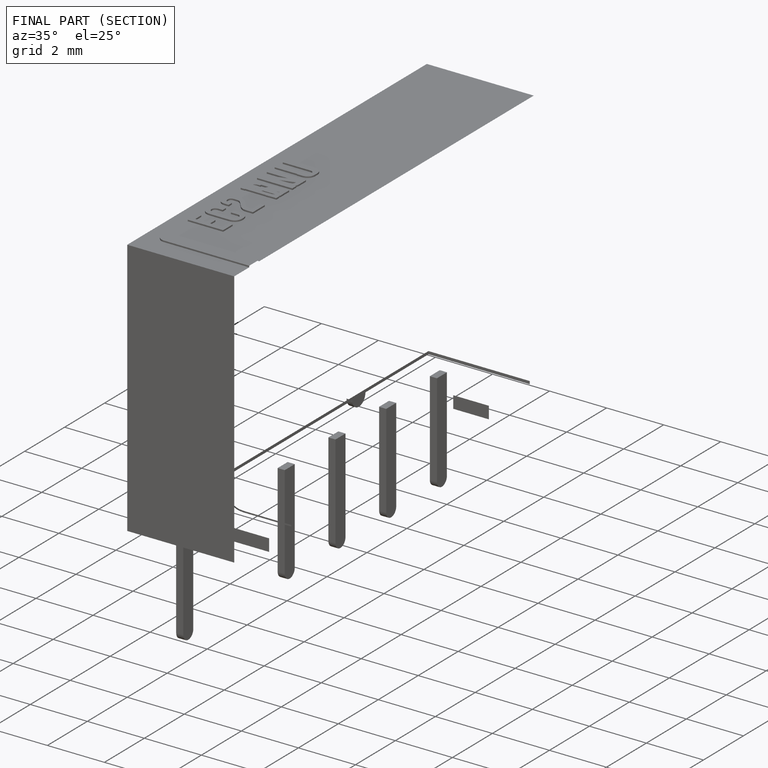
[diagram: finished part — half-section view (interior)]
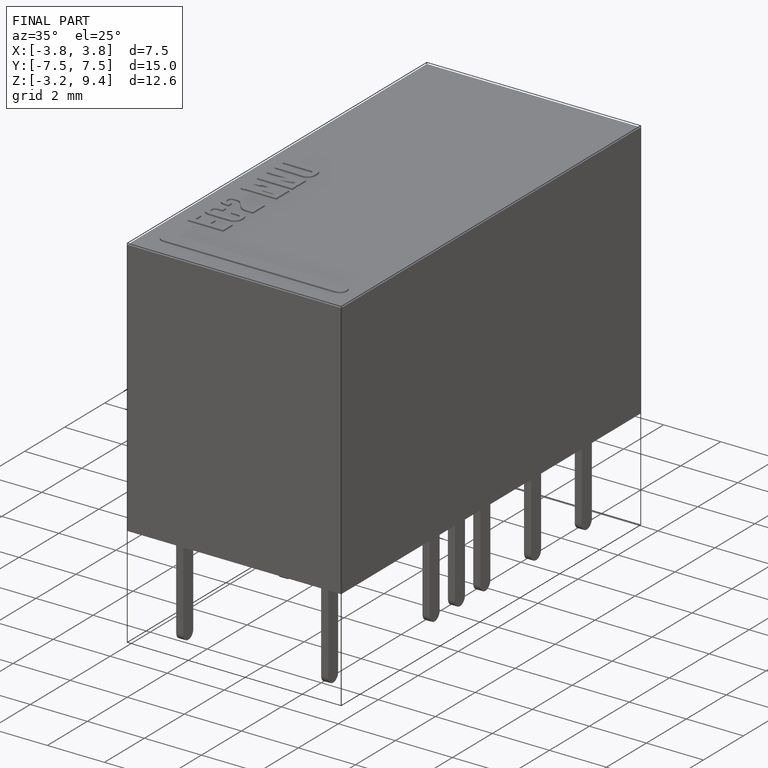
[diagram: finished part — iso view with bounding-box wireframe]
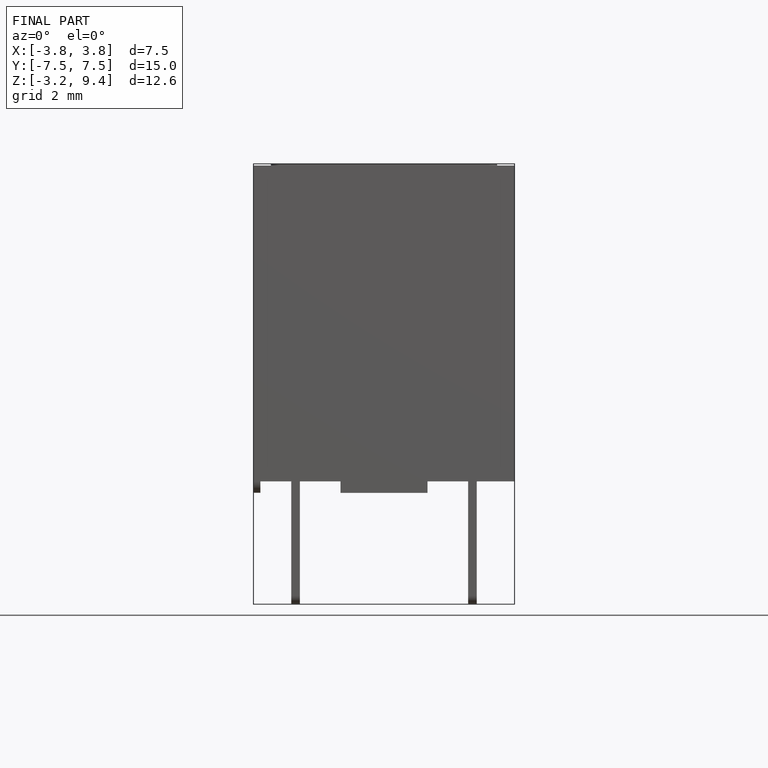
[diagram: finished part — front view with bounding-box wireframe]
